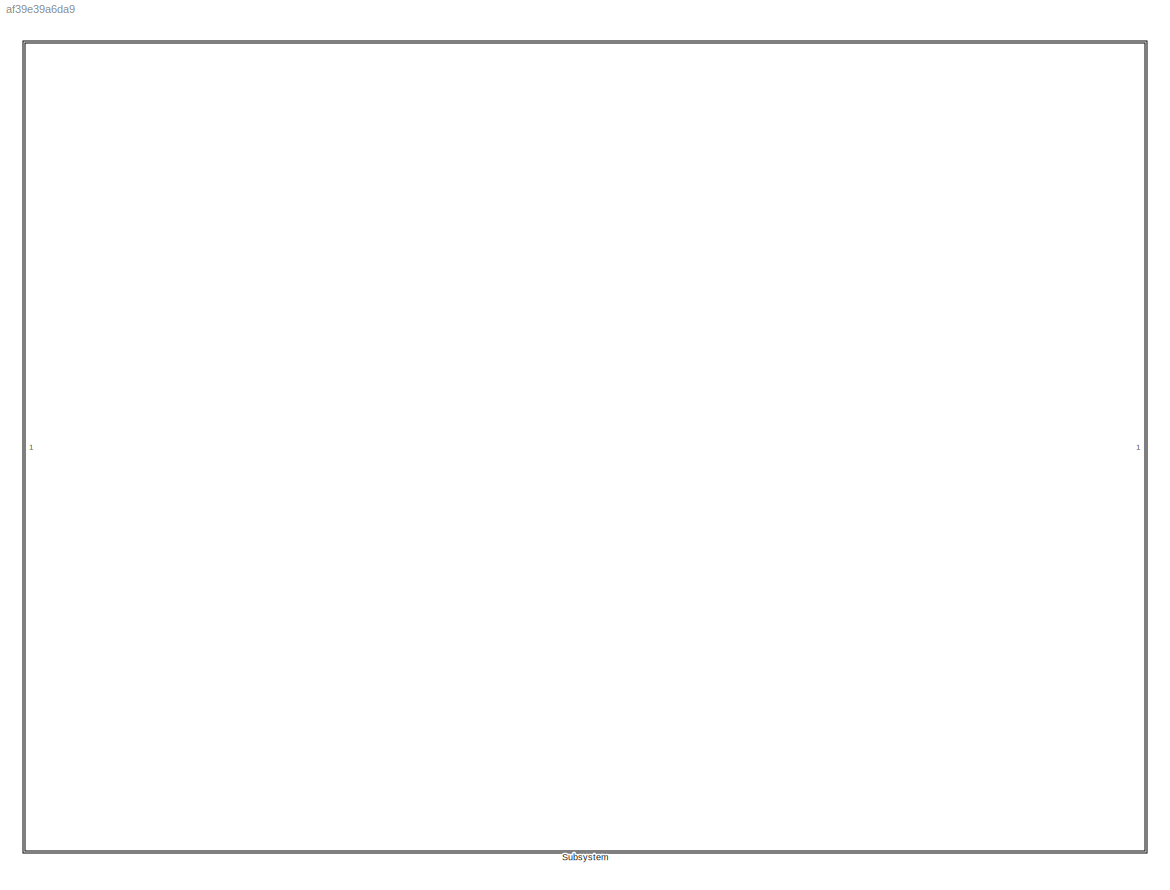
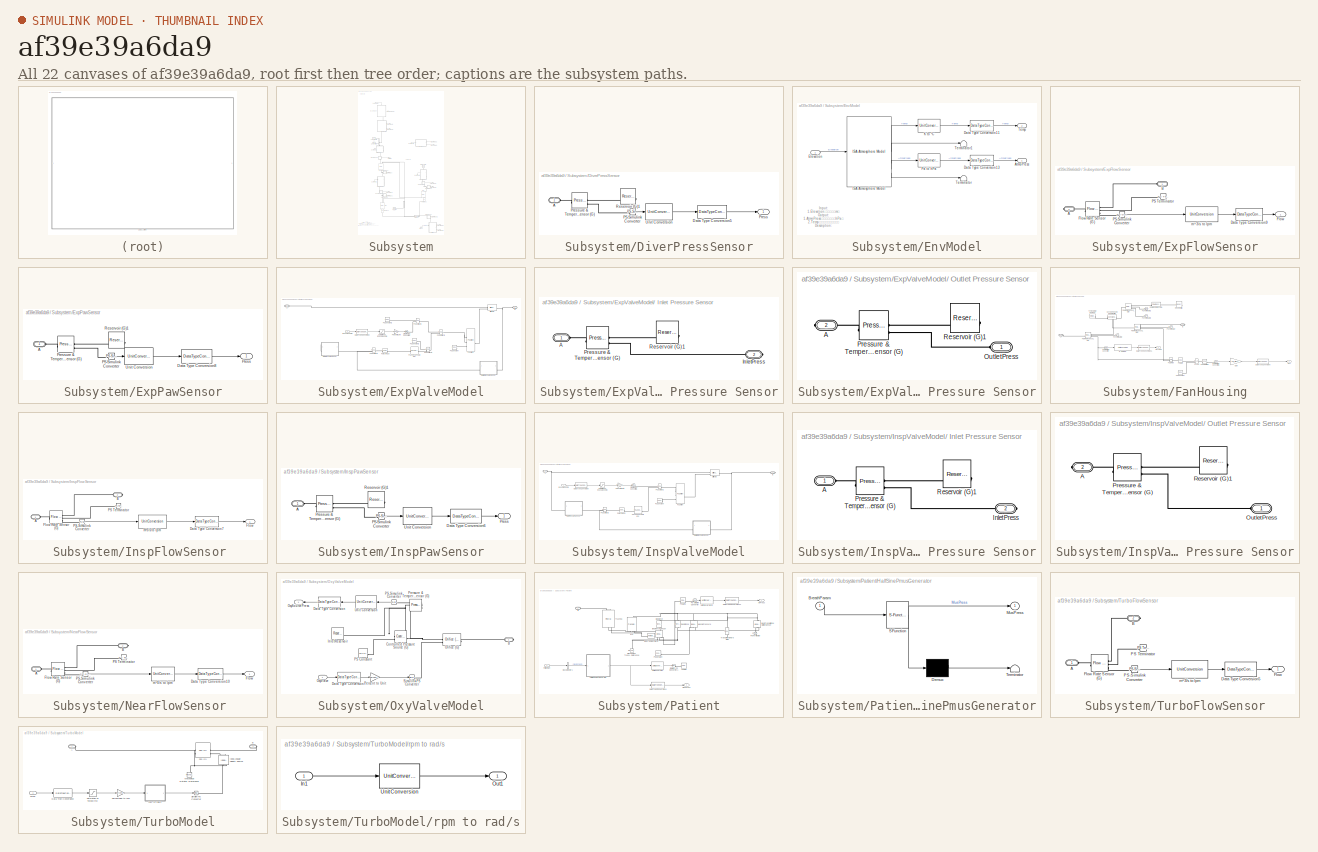
[diagram: thumbnail index - all 22 canvases of the model, root first then tree order]
MODEL slx_af39e39a6da9
KIND model
CONFIG AbsTol = auto
CONFIG EnableMultiTasking = on
CONFIG FixedStep = double(Ts)/1000
CONFIG MaxStep = auto
CONFIG MinStep = auto
CONFIG RelTol = 1e-3
CONFIG SampleTimeConstraint = Unconstrained
CONFIG SolverName = FixedStepDiscrete
CONFIG StartTime = 0.0
CONFIG StopTime = inf
WORKSPACE source: mxarray member
WORKSPACE Air_density = 1.29
WORKSPACE Body_Temperature = 37
WORKSPACE CtrlData_Max = 100
WORKSPACE CtrlData_Min = 0
WORKSPACE Detpress_to_Vavle: object (value not decoded)
WORKSPACE E_respriatory = 10
WORKSPACE ExpValve: object (value not decoded)
WORKSPACE FRC = 2
WORKSPACE Fan: object (value not decoded)
WORKSPACE FanHousing: object (value not decoded)
WORKSPACE Flow_Resistance_1: object (value not decoded)
WORKSPACE Flow_Resistance_2: object (value not decoded)
WORKSPACE Hard_Stop: Lower_bound (value not decoded)
WORKSPACE InspValve: object (value not decoded)
WORKSPACE L_to_m3 = 0.001
WORKSPACE Mask: object (value not decoded)
WORKSPACE OxyValve: object (value not decoded)
WORKSPACE OxygenSensor: object (value not decoded)
WORKSPACE Pa_to_cmH2O = 0.0101974428892
WORKSPACE Percent_to_Unit = 0.01
WORKSPACE Pipe_1: object (value not decoded)
WORKSPACE Pipe_2: object (value not decoded)
WORKSPACE Pipe_3: object (value not decoded)
WORKSPACE R_respiratory = 2
WORKSPACE Reservoir: Cross_area (value not decoded)
WORKSPACE Trachea: object (value not decoded)
WORKSPACE Volume_Max = 0.9
WORKSPACE cmH2O_to_Pa = 98.0638
WORKSPACE cmH2O_to_kPa = 0.0981
WORKSPACE lung: object (value not decoded)
WORKSPACE percentage_to_rpm = 600
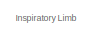
[diagram: Subsystem - part 1/4, top left region]
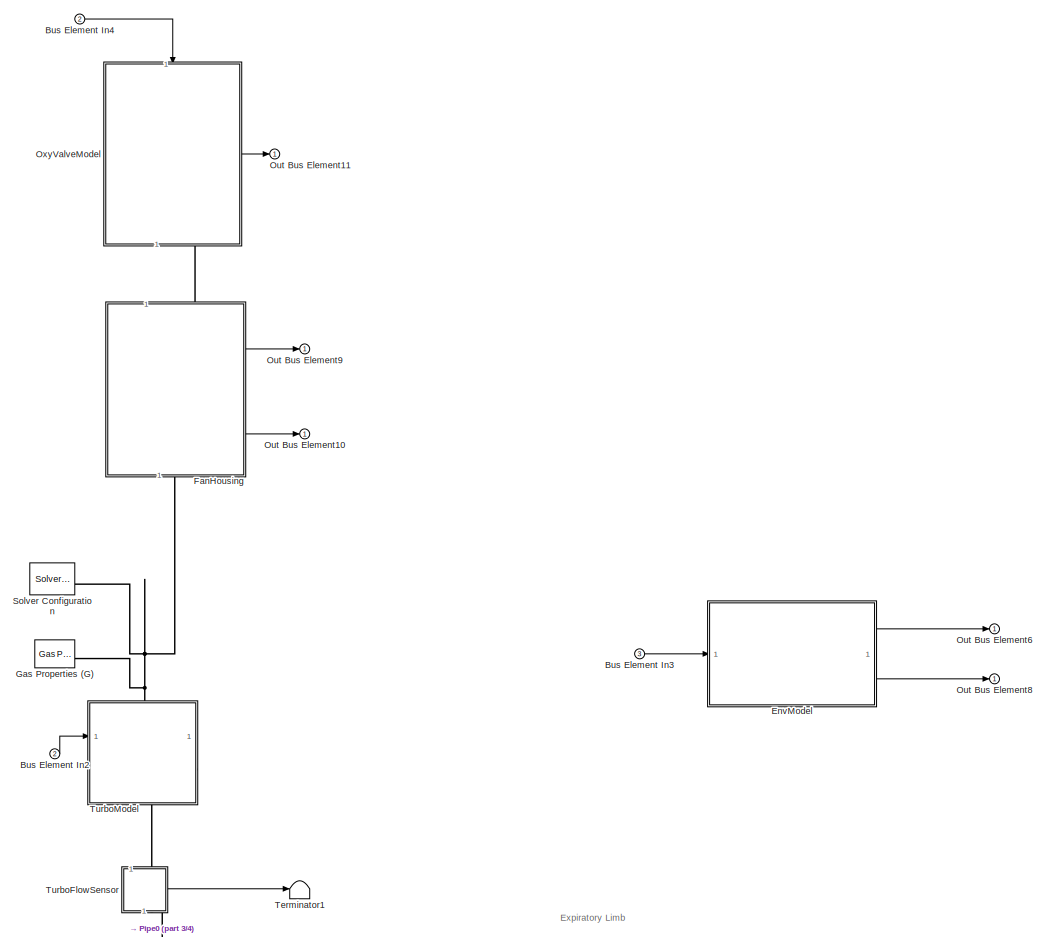
[diagram: Subsystem - part 2/4, full width, top band]
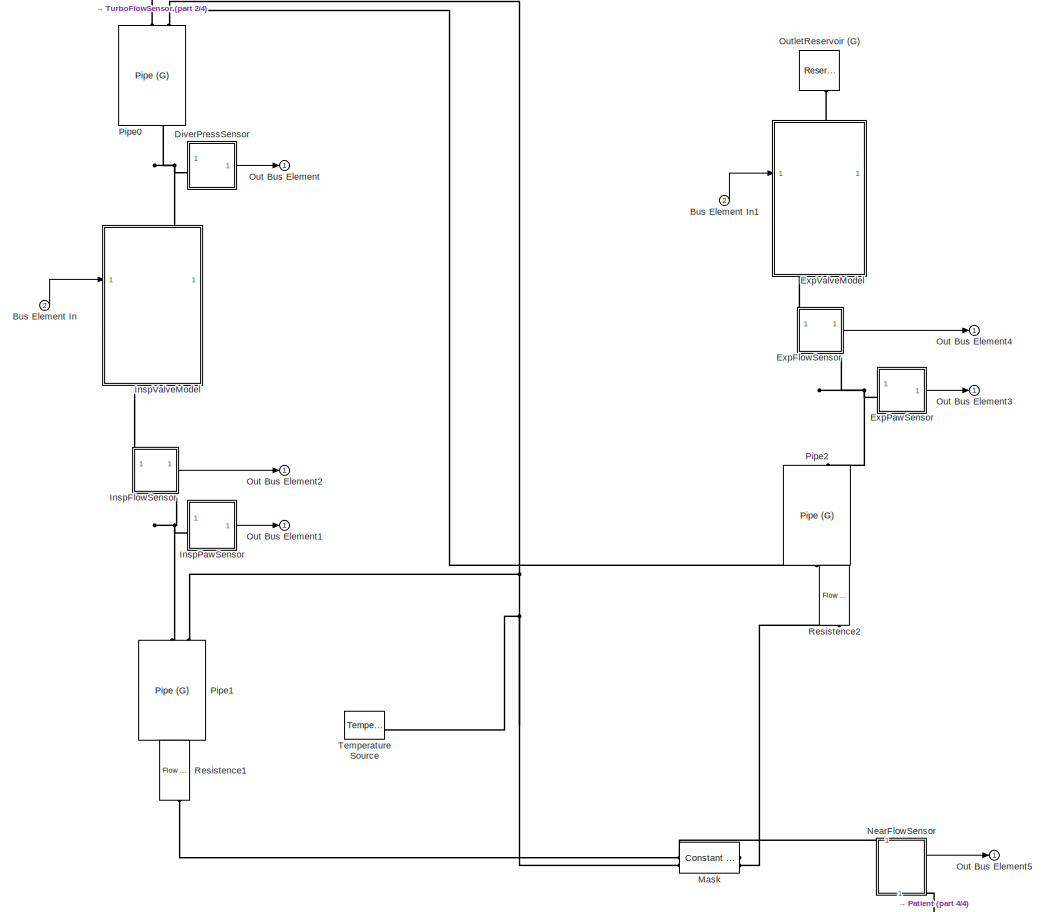
[diagram: Subsystem - part 3/4, full width, bottom band]
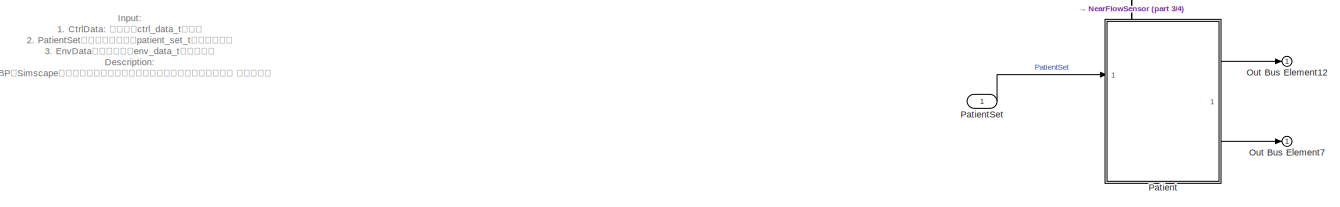
[diagram: Subsystem - part 4/4, full width, bottom band]
BLOCK [SubSystem] Subsystem
BLOCK [Inport] Subsystem/Bus Element In
  Port = 2
BLOCK [Inport] Subsystem/Bus Element In1
  Port = 2
BLOCK [Inport] Subsystem/Bus Element In2
  Port = 2
BLOCK [Inport] Subsystem/Bus Element In3
  Port = 3
BLOCK [Inport] Subsystem/Bus Element In4
  Port = 2
BLOCK [SubSystem] Subsystem/DiverPressSensor
  AttributesFormatString = %<Description>
  Description = 驱动压力传感器
BLOCK [PMIOPort] Subsystem/DiverPressSensor/A
  Side = Left
BLOCK [DataTypeConversion] Subsystem/DiverPressSensor/Data Type Conversion5
  OutDataTypeStr = single
  RndMeth = Floor
  SaturateOnIntegerOverflow = off
BLOCK [Reference] Subsystem/DiverPressSensor/PS-Simulink Converter  REF=nesl_utility/PS-Simulink
Converter
  SourceBlock = nesl_utility/PS-Simulink\nConverter
  SourceType = PS-Simulink\nConverter
BLOCK [Outport] Subsystem/DiverPressSensor/Press
  Unit = hPa
BLOCK [Reference] Subsystem/DiverPressSensor/Pressure & Temperature Sensor (G)  REF=fl_lib/Gas/Sensors/Pressure &
Temperature Sensor
(G)
  SourceBlock = fl_lib/Gas/Sensors/Pressure &\nTemperature Sensor\n(G)
  SourceType = Pressure &\nTemperature Sensor\n(G)
BLOCK [Reference] Subsystem/DiverPressSensor/Reservoir (G)1  REF=fl_lib/Gas/Elements/Reservoir (G)
  NameLocation = top
  SourceBlock = fl_lib/Gas/Elements/Reservoir (G)
  SourceType = Reservoir (G)
BLOCK [UnitConversion] Subsystem/DiverPressSensor/Unit Conversion
BLOCK [SubSystem] Subsystem/EnvModel
  AttributesFormatString = %<Description>
  Description = 环境模型
BLOCK [Outport] Subsystem/EnvModel/AtmoPress
  OutDataTypeStr = single
  Unit = hPa
BLOCK [DataTypeConversion] Subsystem/EnvModel/Data Type Conversion11
  OutDataTypeStr = single
  RndMeth = Floor
  SaturateOnIntegerOverflow = off
BLOCK [DataTypeConversion] Subsystem/EnvModel/Data Type Conversion13
  OutDataTypeStr = single
  RndMeth = Floor
  SaturateOnIntegerOverflow = off
BLOCK [Inport] Subsystem/EnvModel/Elevation
  OutDataTypeStr = int16
  Unit = m
BLOCK [Reference] Subsystem/EnvModel/ISA Atmosphere Model  REF=aerolibatmos2/ISA Atmosphere Model
  SourceBlock = aerolibatmos2/ISA Atmosphere Model
  SourceType = International Standard Atmosphere Model
BLOCK [UnitConversion] Subsystem/EnvModel/K to °C
  OutputType = Inherit: Inherit via back propagation
BLOCK [UnitConversion] Subsystem/EnvModel/Pa to hPa
  OutputType = Inherit: Inherit via back propagation
BLOCK [Outport] Subsystem/EnvModel/Temp
  OutDataTypeStr = single
  Port = 2
  Unit = °C
BLOCK [Terminator] Subsystem/EnvModel/Terminator
BLOCK [Terminator] Subsystem/EnvModel/Terminator1
BLOCK [SubSystem] Subsystem/ExpFlowSensor
  AttributesFormatString = %<Description>
  Description = 呼气流量传感器
  NameLocation = left
  PortSchema = {"entries":[{"content":{"sides":[{"content":{},"type":"ConnectorPlacement.EquallySpacedRectSide","uuid":"cd0dad8e-6d52-4c29-8cf6-3415105d5cc2"},{"content":{"connectorIds":["Out1"],"side":"RIGHT"},"type":"ConnectorPlacement.EquallySpacedRectSide","uuid":"87c9a66d-f959-45b9-804b-fad11e97da0c"},{"content":{"connectorIds":["LConn1"],"side":"TOP"},"type":"ConnectorPlacement.EquallySpacedRectSide","uuid...<+378ch>
BLOCK [PMIOPort] Subsystem/ExpFlowSensor/A
  Port = 2
  Side = Right
BLOCK [PMIOPort] Subsystem/ExpFlowSensor/B
  Side = Left
BLOCK [DataTypeConversion] Subsystem/ExpFlowSensor/Data Type Conversion9
  OutDataTypeStr = single
  RndMeth = Floor
  SaturateOnIntegerOverflow = off
BLOCK [Outport] Subsystem/ExpFlowSensor/Flow
  Unit = lpm
BLOCK [Reference] Subsystem/ExpFlowSensor/Flow Rate Sensor (G)  REF=fl_lib/Gas/Sensors/Flow Rate Sensor (G)
  SourceBlock = fl_lib/Gas/Sensors/Flow Rate Sensor (G)
  SourceType = Flow Rate Sensor (G)
BLOCK [Reference] Subsystem/ExpFlowSensor/PS Terminator  REF=fl_lib/Physical Signals/Sinks/PS Terminator
  SourceBlock = fl_lib/Physical Signals/Sinks/PS Terminator
  SourceType = PS Terminator
BLOCK [Reference] Subsystem/ExpFlowSensor/PS-Simulink Converter  REF=nesl_utility/PS-Simulink
Converter
  SourceBlock = nesl_utility/PS-Simulink\nConverter
  SourceType = PS-Simulink\nConverter
BLOCK [UnitConversion] Subsystem/ExpFlowSensor/m^3//s to lpm
BLOCK [SubSystem] Subsystem/ExpPawSensor
  AttributesFormatString = %<Description>
  Description = 呼气压力传感器
BLOCK [PMIOPort] Subsystem/ExpPawSensor/A
  Side = Left
BLOCK [DataTypeConversion] Subsystem/ExpPawSensor/Data Type Conversion8
  OutDataTypeStr = single
  RndMeth = Floor
  SaturateOnIntegerOverflow = off
BLOCK [Reference] Subsystem/ExpPawSensor/PS-Simulink Converter  REF=nesl_utility/PS-Simulink
Converter
  SourceBlock = nesl_utility/PS-Simulink\nConverter
  SourceType = PS-Simulink\nConverter
BLOCK [Outport] Subsystem/ExpPawSensor/Press
  Unit = hPa
BLOCK [Reference] Subsystem/ExpPawSensor/Pressure & Temperature Sensor (G)  REF=fl_lib/Gas/Sensors/Pressure &
Temperature Sensor
(G)
  SourceBlock = fl_lib/Gas/Sensors/Pressure &\nTemperature Sensor\n(G)
  SourceType = Pressure &\nTemperature Sensor\n(G)
BLOCK [Reference] Subsystem/ExpPawSensor/Reservoir (G)1  REF=fl_lib/Gas/Elements/Reservoir (G)
  NameLocation = top
  SourceBlock = fl_lib/Gas/Elements/Reservoir (G)
  SourceType = Reservoir (G)
BLOCK [UnitConversion] Subsystem/ExpPawSensor/Unit Conversion
BLOCK [SubSystem] Subsystem/ExpValveModel
  AttributesFormatString = %<Description>
  Description = 呼气阀模型
  NameLocation = right
  PortSchema = {"entries":[{"content":{"sides":[{"content":{"connectorIds":["In1"]},"type":"ConnectorPlacement.EquallySpacedRectSide","uuid":"c1491169-4dad-48f4-8472-367eebf90c5f"},{"content":{"side":"RIGHT"},"type":"ConnectorPlacement.EquallySpacedRectSide","uuid":"0545f3b4-3593-4e73-91f2-3a40a520eda3"},{"content":{"connectorIds":["LConn1"],"side":"TOP"},"type":"ConnectorPlacement.EquallySpacedRectSide","uuid":...<+376ch>  <repeated x3 — deduplicated; at blocks: ExpValveModel, InspValveModel, TurboModel>
BLOCK [SubSystem] Subsystem/ExpValveModel/ Inlet Pressure Sensor
BLOCK [PMIOPort] Subsystem/ExpValveModel/ Inlet Pressure Sensor/A
  Side = Left
BLOCK [PMIOPort] Subsystem/ExpValveModel/ Inlet Pressure Sensor/InletPress
  Port = 2
  Side = Right
BLOCK [Reference] Subsystem/ExpValveModel/ Inlet Pressure Sensor/Pressure & Temperature Sensor (G)  REF=fl_lib/Gas/Sensors/Pressure &
Temperature Sensor
(G)
  SourceBlock = fl_lib/Gas/Sensors/Pressure &\nTemperature Sensor\n(G)
  SourceType = Pressure &\nTemperature Sensor\n(G)
BLOCK [Reference] Subsystem/ExpValveModel/ Inlet Pressure Sensor/Reservoir (G)1  REF=fl_lib/Gas/Elements/Reservoir (G)
  NameLocation = top
  SourceBlock = fl_lib/Gas/Elements/Reservoir (G)
  SourceType = Reservoir (G)
BLOCK [SubSystem] Subsystem/ExpValveModel/ Outlet Pressure Sensor
BLOCK [PMIOPort] Subsystem/ExpValveModel/ Outlet Pressure Sensor/A
  Port = 2
  Side = Right
BLOCK [PMIOPort] Subsystem/ExpValveModel/ Outlet Pressure Sensor/OutletPress
  Side = Left
BLOCK [Reference] Subsystem/ExpValveModel/ Outlet Pressure Sensor/Pressure & Temperature Sensor (G)  REF=fl_lib/Gas/Sensors/Pressure &
Temperature Sensor
(G)
  SourceBlock = fl_lib/Gas/Sensors/Pressure &\nTemperature Sensor\n(G)
  SourceType = Pressure &\nTemperature Sensor\n(G)
BLOCK [Reference] Subsystem/ExpValveModel/ Outlet Pressure Sensor/Reservoir (G)1  REF=fl_lib/Gas/Elements/Reservoir (G)
  NameLocation = top
  SourceBlock = fl_lib/Gas/Elements/Reservoir (G)
  SourceType = Reservoir (G)
BLOCK [PMIOPort] Subsystem/ExpValveModel/A
  Port = 2
  Side = Right
BLOCK [PMIOPort] Subsystem/ExpValveModel/B
  NameLocation = top
  Side = Left
BLOCK [DataTypeConversion] Subsystem/ExpValveModel/Data Type Conversion
  OutDataTypeStr = double
  RndMeth = Floor
  SaturateOnIntegerOverflow = off
BLOCK [Inport] Subsystem/ExpValveModel/ExpValveCmd
BLOCK [Reference] Subsystem/ExpValveModel/Orifice (G)  REF=SimscapeFluids_lib/Gas/Valves & Orifices/Orifice (G)
  SourceBlock = SimscapeFluids_lib/Gas/Valves & Orifices/Orifice (G)
  SourceType = Orifice (G)
BLOCK [Reference] Subsystem/ExpValveModel/PS Constant  REF=fl_lib/Physical Signals/Sources/PS Constant
  SourceBlock = fl_lib/Physical Signals/Sources/PS Constant
  SourceType = PS Constant
BLOCK [Reference] Subsystem/ExpValveModel/PS Constant1  REF=fl_lib/Physical Signals/Sources/PS Constant
  SourceBlock = fl_lib/Physical Signals/Sources/PS Constant
  SourceType = PS Constant
BLOCK [Reference] Subsystem/ExpValveModel/PS Constant2  REF=fl_lib/Physical Signals/Sources/PS Constant
  SourceBlock = fl_lib/Physical Signals/Sources/PS Constant
  SourceType = PS Constant
BLOCK [Reference] Subsystem/ExpValveModel/PS Lookup Table (1D)  REF=fl_lib/Physical Signals/Lookup Tables/PS Lookup Table (1D)
  SourceBlock = fl_lib/Physical Signals/Lookup Tables/PS Lookup Table (1D)
  SourceType = PS Lookup Table (1D)
BLOCK [Reference] Subsystem/ExpValveModel/PS Subtract1  REF=fl_lib/Physical Signals/Functions/PS Subtract
  SourceBlock = fl_lib/Physical Signals/Functions/PS Subtract
  SourceType = PS Subtract
BLOCK [Reference] Subsystem/ExpValveModel/PS Subtract2  REF=fl_lib/Physical Signals/Functions/PS Subtract
  SourceBlock = fl_lib/Physical Signals/Functions/PS Subtract
  SourceType = PS Subtract
BLOCK [Reference] Subsystem/ExpValveModel/PS Subtract3  REF=fl_lib/Physical Signals/Functions/PS Subtract
  SourceBlock = fl_lib/Physical Signals/Functions/PS Subtract
  SourceType = PS Subtract
BLOCK [Reference] Subsystem/ExpValveModel/PS Subtract4  REF=fl_lib/Physical Signals/Functions/PS Subtract
  SourceBlock = fl_lib/Physical Signals/Functions/PS Subtract
  SourceType = PS Subtract
BLOCK [Reference] Subsystem/ExpValveModel/PS Switch  REF=fl_lib/Physical Signals/Nonlinear Operators/PS Switch
  SourceBlock = fl_lib/Physical Signals/Nonlinear Operators/PS Switch
  SourceType = PS Switch
BLOCK [Reference] Subsystem/ExpValveModel/Pa to cmH2O  REF=fl_lib/Physical Signals/Functions/PS Gain
  SourceBlock = fl_lib/Physical Signals/Functions/PS Gain
  SourceType = PS Gain
BLOCK [Gain] Subsystem/ExpValveModel/Percent to Unit
  Gain = Percent_to_Unit
BLOCK [Saturate] Subsystem/ExpValveModel/Saturation of ExpValveCmd
  LowerLimit = CtrlData_Min
  UpperLimit = CtrlData_Max
BLOCK [Reference] Subsystem/ExpValveModel/Simulink-PS Converter1  REF=nesl_utility/Simulink-PS
Converter
  SourceBlock = nesl_utility/Simulink-PS\nConverter
  SourceType = Simulink-PS\nConverter
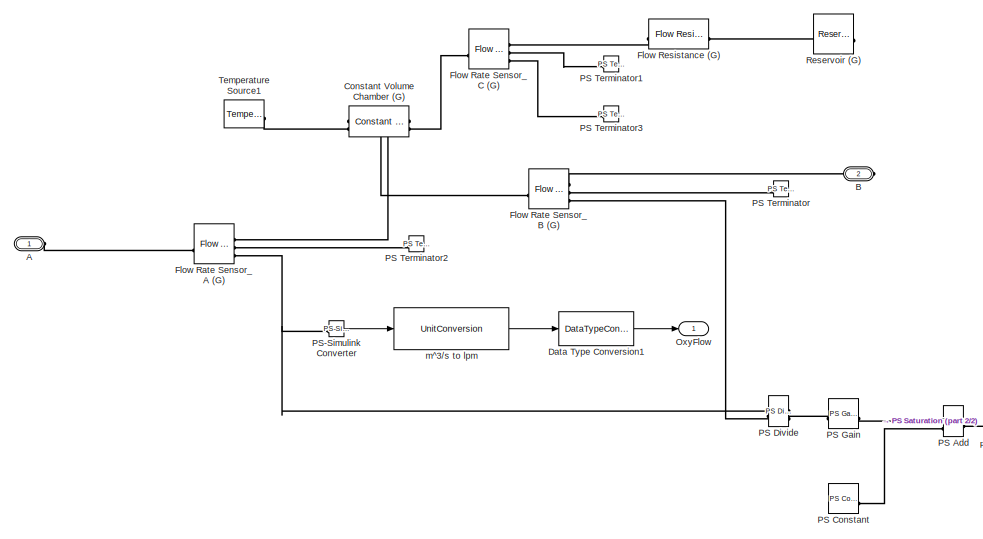
[diagram: Subsystem/FanHousing - part 1/2, left side, full height]
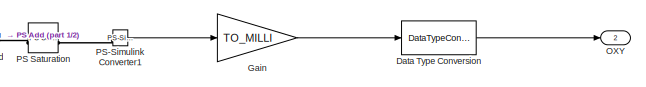
[diagram: Subsystem/FanHousing - part 2/2, bottom right region]
BLOCK [SubSystem] Subsystem/FanHousing
  NameLocation = left
  PortSchema = {"entries":[{"content":{"sides":[{"content":{"connectorIds":["LConn1"]},"type":"ConnectorPlacement.EquallySpacedRectSide","uuid":"15cafa55-60cd-4d3b-b977-d1b85a2ca433"},{"content":{"connectorIds":["RConn1"],"side":"RIGHT"},"type":"ConnectorPlacement.EquallySpacedRectSide","uuid":"8d18da00-01d7-4e91-b6fd-cbc9715a4a90"},{"content":{"side":"TOP"},"type":"ConnectorPlacement.EquallySpacedRectSide","uui...<+384ch>
BLOCK [PMIOPort] Subsystem/FanHousing/A
  Side = Left
BLOCK [PMIOPort] Subsystem/FanHousing/B
  Port = 2
  Side = Right
BLOCK [Reference] Subsystem/FanHousing/Constant Volume Chamber (G)  REF=fl_lib/Gas/Elements/Constant Volume
Chamber (G)
  NameLocation = top
  SourceBlock = fl_lib/Gas/Elements/Constant Volume\nChamber (G)
  SourceType = Constant Volume\nChamber (G)
BLOCK [DataTypeConversion] Subsystem/FanHousing/Data Type Conversion
  OutDataTypeStr = single
  RndMeth = Floor
  SaturateOnIntegerOverflow = off
BLOCK [DataTypeConversion] Subsystem/FanHousing/Data Type Conversion1
  OutDataTypeStr = single
  RndMeth = Floor
  SaturateOnIntegerOverflow = off
BLOCK [Reference] Subsystem/FanHousing/Flow Rate Sensor_A (G)  REF=fl_lib/Gas/Sensors/Flow Rate Sensor (G)
  SourceBlock = fl_lib/Gas/Sensors/Flow Rate Sensor (G)
  SourceType = Flow Rate Sensor (G)
BLOCK [Reference] Subsystem/FanHousing/Flow Rate Sensor_B (G)  REF=fl_lib/Gas/Sensors/Flow Rate Sensor (G)
  SourceBlock = fl_lib/Gas/Sensors/Flow Rate Sensor (G)
  SourceType = Flow Rate Sensor (G)
BLOCK [Reference] Subsystem/FanHousing/Flow Rate Sensor_C (G)  REF=fl_lib/Gas/Sensors/Flow Rate Sensor (G)
  SourceBlock = fl_lib/Gas/Sensors/Flow Rate Sensor (G)
  SourceType = Flow Rate Sensor (G)
BLOCK [Reference] Subsystem/FanHousing/Flow Resistance (G)  REF=fl_lib/Gas/Elements/Flow Resistance (G)
  SourceBlock = fl_lib/Gas/Elements/Flow Resistance (G)
  SourceType = Flow Resistance (G)
BLOCK [Gain] Subsystem/FanHousing/Gain
  Gain = TO_MILLI
BLOCK [Outport] Subsystem/FanHousing/OXY
  Port = 2
  Unit = m
BLOCK [Outport] Subsystem/FanHousing/OxyFlow
  Unit = lpm
BLOCK [Reference] Subsystem/FanHousing/PS Add  REF=fl_lib/Physical Signals/Functions/PS Add
  SourceBlock = fl_lib/Physical Signals/Functions/PS Add
  SourceType = PS Add
BLOCK [Reference] Subsystem/FanHousing/PS Constant  REF=fl_lib/Physical Signals/Sources/PS Constant
  SourceBlock = fl_lib/Physical Signals/Sources/PS Constant
  SourceType = PS Constant
BLOCK [Reference] Subsystem/FanHousing/PS Divide  REF=fl_lib/Physical Signals/Functions/PS Divide
  SourceBlock = fl_lib/Physical Signals/Functions/PS Divide
  SourceType = PS Divide
BLOCK [Reference] Subsystem/FanHousing/PS Gain  REF=fl_lib/Physical Signals/Functions/PS Gain
  SourceBlock = fl_lib/Physical Signals/Functions/PS Gain
  SourceType = PS Gain
BLOCK [Reference] Subsystem/FanHousing/PS Saturation  REF=fl_lib/Physical Signals/Nonlinear Operators/PS Saturation
  SourceBlock = fl_lib/Physical Signals/Nonlinear Operators/PS Saturation
  SourceType = PS Saturation
BLOCK [Reference] Subsystem/FanHousing/PS Terminator  REF=fl_lib/Physical Signals/Sinks/PS Terminator
  SourceBlock = fl_lib/Physical Signals/Sinks/PS Terminator
  SourceType = PS Terminator
BLOCK [Reference] Subsystem/FanHousing/PS Terminator1  REF=fl_lib/Physical Signals/Sinks/PS Terminator
  SourceBlock = fl_lib/Physical Signals/Sinks/PS Terminator
  SourceType = PS Terminator
BLOCK [Reference] Subsystem/FanHousing/PS Terminator2  REF=fl_lib/Physical Signals/Sinks/PS Terminator
  SourceBlock = fl_lib/Physical Signals/Sinks/PS Terminator
  SourceType = PS Terminator
BLOCK [Reference] Subsystem/FanHousing/PS Terminator3  REF=fl_lib/Physical Signals/Sinks/PS Terminator
  SourceBlock = fl_lib/Physical Signals/Sinks/PS Terminator
  SourceType = PS Terminator
BLOCK [Reference] Subsystem/FanHousing/PS-Simulink Converter  REF=nesl_utility/PS-Simulink
Converter
  SourceBlock = nesl_utility/PS-Simulink\nConverter
  SourceType = PS-Simulink\nConverter
BLOCK [Reference] Subsystem/FanHousing/PS-Simulink Converter1  REF=nesl_utility/PS-Simulink
Converter
  SourceBlock = nesl_utility/PS-Simulink\nConverter
  SourceType = PS-Simulink\nConverter
BLOCK [Reference] Subsystem/FanHousing/Reservoir (G)  REF=fl_lib/Gas/Elements/Reservoir (G)
  NameLocation = top
  SourceBlock = fl_lib/Gas/Elements/Reservoir (G)
  SourceType = Reservoir (G)
BLOCK [Reference] Subsystem/FanHousing/Temperature Source1  REF=fl_lib/Thermal/Thermal Sources/Temperature Source
  SourceBlock = fl_lib/Thermal/Thermal Sources/Temperature Source
  SourceType = Temperature Source
BLOCK [UnitConversion] Subsystem/FanHousing/m^3//s to lpm
BLOCK [Reference] Subsystem/Gas Properties (G)  REF=fl_lib/Gas/Utilities/Gas Properties (G)
  SourceBlock = fl_lib/Gas/Utilities/Gas Properties (G)
  SourceType = Gas Properties (G)
BLOCK [SubSystem] Subsystem/InspFlowSensor 
  AttributesFormatString = %<Description>
  Description = 吸气流量传感器
  NameLocation = left
  PortSchema = {"entries":[{"content":{"sides":[{"content":{},"type":"ConnectorPlacement.EquallySpacedRectSide","uuid":"cd0dad8e-6d52-4c29-8cf6-3415105d5cc2"},{"content":{"connectorIds":["Out1"],"side":"RIGHT"},"type":"ConnectorPlacement.EquallySpacedRectSide","uuid":"87c9a66d-f959-45b9-804b-fad11e97da0c"},{"content":{"connectorIds":["LConn1"],"side":"TOP"},"type":"ConnectorPlacement.EquallySpacedRectSide","uuid...<+378ch>
BLOCK [PMIOPort] Subsystem/InspFlowSensor /A
  Side = Left
BLOCK [PMIOPort] Subsystem/InspFlowSensor /B
  Port = 2
  Side = Right
BLOCK [DataTypeConversion] Subsystem/InspFlowSensor /Data Type Conversion7
  OutDataTypeStr = single
  RndMeth = Floor
  SaturateOnIntegerOverflow = off
BLOCK [Outport] Subsystem/InspFlowSensor /Flow
  Unit = lpm
BLOCK [Reference] Subsystem/InspFlowSensor /Flow Rate Sensor (G)  REF=fl_lib/Gas/Sensors/Flow Rate Sensor (G)
  SourceBlock = fl_lib/Gas/Sensors/Flow Rate Sensor (G)
  SourceType = Flow Rate Sensor (G)
BLOCK [Reference] Subsystem/InspFlowSensor /PS Terminator  REF=fl_lib/Physical Signals/Sinks/PS Terminator
  SourceBlock = fl_lib/Physical Signals/Sinks/PS Terminator
  SourceType = PS Terminator
BLOCK [Reference] Subsystem/InspFlowSensor /PS-Simulink Converter  REF=nesl_utility/PS-Simulink
Converter
  SourceBlock = nesl_utility/PS-Simulink\nConverter
  SourceType = PS-Simulink\nConverter
BLOCK [UnitConversion] Subsystem/InspFlowSensor /m^3//s to lpm
BLOCK [SubSystem] Subsystem/InspPawSensor
  AttributesFormatString = %<Description>
  Description = 吸气压力传感器
BLOCK [PMIOPort] Subsystem/InspPawSensor/A
  Side = Left
BLOCK [DataTypeConversion] Subsystem/InspPawSensor/Data Type Conversion6
  OutDataTypeStr = single
  RndMeth = Floor
  SaturateOnIntegerOverflow = off
BLOCK [Reference] Subsystem/InspPawSensor/PS-Simulink Converter  REF=nesl_utility/PS-Simulink
Converter
  SourceBlock = nesl_utility/PS-Simulink\nConverter
  SourceType = PS-Simulink\nConverter
BLOCK [Outport] Subsystem/InspPawSensor/Press
  Unit = hPa
BLOCK [Reference] Subsystem/InspPawSensor/Pressure & Temperature Sensor (G)  REF=fl_lib/Gas/Sensors/Pressure &
Temperature Sensor
(G)
  SourceBlock = fl_lib/Gas/Sensors/Pressure &\nTemperature Sensor\n(G)
  SourceType = Pressure &\nTemperature Sensor\n(G)
BLOCK [Reference] Subsystem/InspPawSensor/Reservoir (G)1  REF=fl_lib/Gas/Elements/Reservoir (G)
  NameLocation = top
  SourceBlock = fl_lib/Gas/Elements/Reservoir (G)
  SourceType = Reservoir (G)
BLOCK [UnitConversion] Subsystem/InspPawSensor/Unit Conversion
BLOCK [SubSystem] Subsystem/InspValveModel
  AttributesFormatString = %<Description>
  Description = 吸气阀模型
  NameLocation = right
BLOCK [SubSystem] Subsystem/InspValveModel/ Inlet Pressure Sensor
BLOCK [PMIOPort] Subsystem/InspValveModel/ Inlet Pressure Sensor/A
  Side = Left
BLOCK [PMIOPort] Subsystem/InspValveModel/ Inlet Pressure Sensor/InletPress
  Port = 2
  Side = Right
BLOCK [Reference] Subsystem/InspValveModel/ Inlet Pressure Sensor/Pressure & Temperature Sensor (G)  REF=fl_lib/Gas/Sensors/Pressure &
Temperature Sensor
(G)
  SourceBlock = fl_lib/Gas/Sensors/Pressure &\nTemperature Sensor\n(G)
  SourceType = Pressure &\nTemperature Sensor\n(G)
BLOCK [Reference] Subsystem/InspValveModel/ Inlet Pressure Sensor/Reservoir (G)1  REF=fl_lib/Gas/Elements/Reservoir (G)
  NameLocation = top
  SourceBlock = fl_lib/Gas/Elements/Reservoir (G)
  SourceType = Reservoir (G)
BLOCK [SubSystem] Subsystem/InspValveModel/ Outlet Pressure Sensor
BLOCK [PMIOPort] Subsystem/InspValveModel/ Outlet Pressure Sensor/A
  Port = 2
  Side = Right
BLOCK [PMIOPort] Subsystem/InspValveModel/ Outlet Pressure Sensor/OutletPress
  Side = Left
BLOCK [Reference] Subsystem/InspValveModel/ Outlet Pressure Sensor/Pressure & Temperature Sensor (G)  REF=fl_lib/Gas/Sensors/Pressure &
Temperature Sensor
(G)
  SourceBlock = fl_lib/Gas/Sensors/Pressure &\nTemperature Sensor\n(G)
  SourceType = Pressure &\nTemperature Sensor\n(G)
BLOCK [Reference] Subsystem/InspValveModel/ Outlet Pressure Sensor/Reservoir (G)1  REF=fl_lib/Gas/Elements/Reservoir (G)
  NameLocation = top
  SourceBlock = fl_lib/Gas/Elements/Reservoir (G)
  SourceType = Reservoir (G)
BLOCK [PMIOPort] Subsystem/InspValveModel/A
  Side = Left
BLOCK [PMIOPort] Subsystem/InspValveModel/B
  Port = 2
  Side = Right
BLOCK [DataTypeConversion] Subsystem/InspValveModel/Data Type Conversion
  OutDataTypeStr = double
  RndMeth = Floor
  SaturateOnIntegerOverflow = off
BLOCK [Inport] Subsystem/InspValveModel/InspValveCmd
BLOCK [Reference] Subsystem/InspValveModel/Orifice (G)  REF=SimscapeFluids_lib/Gas/Valves & Orifices/Orifice (G)
  SourceBlock = SimscapeFluids_lib/Gas/Valves & Orifices/Orifice (G)
  SourceType = Orifice (G)
BLOCK [Reference] Subsystem/InspValveModel/PS Constant  REF=fl_lib/Physical Signals/Sources/PS Constant
  SourceBlock = fl_lib/Physical Signals/Sources/PS Constant
  SourceType = PS Constant
BLOCK [Reference] Subsystem/InspValveModel/PS Lookup Table (1D)  REF=fl_lib/Physical Signals/Lookup Tables/PS Lookup Table (1D)
  SourceBlock = fl_lib/Physical Signals/Lookup Tables/PS Lookup Table (1D)
  SourceType = PS Lookup Table (1D)
BLOCK [Reference] Subsystem/InspValveModel/PS Subtract1  REF=fl_lib/Physical Signals/Functions/PS Subtract
  SourceBlock = fl_lib/Physical Signals/Functions/PS Subtract
  SourceType = PS Subtract
BLOCK [Reference] Subsystem/InspValveModel/PS Subtract2  REF=fl_lib/Physical Signals/Functions/PS Subtract
  SourceBlock = fl_lib/Physical Signals/Functions/PS Subtract
  SourceType = PS Subtract
BLOCK [Reference] Subsystem/InspValveModel/PS Switch  REF=fl_lib/Physical Signals/Nonlinear Operators/PS Switch
  SourceBlock = fl_lib/Physical Signals/Nonlinear Operators/PS Switch
  SourceType = PS Switch
BLOCK [Reference] Subsystem/InspValveModel/Pa to cmH2O  REF=fl_lib/Physical Signals/Functions/PS Gain
  SourceBlock = fl_lib/Physical Signals/Functions/PS Gain
  SourceType = PS Gain
BLOCK [Gain] Subsystem/InspValveModel/Percent to Unit
  Gain = Percent_to_Unit
BLOCK [Saturate] Subsystem/InspValveModel/Saturation of InspValveCmd
  LowerLimit = CtrlData_Min
  UpperLimit = CtrlData_Max
BLOCK [Reference] Subsystem/InspValveModel/Simulink-PS Converter1  REF=nesl_utility/Simulink-PS
Converter
  SourceBlock = nesl_utility/Simulink-PS\nConverter
  SourceType = Simulink-PS\nConverter
BLOCK [Reference] Subsystem/Mask  REF=fl_lib/Gas/Elements/Constant Volume
Chamber (G)
  SourceBlock = fl_lib/Gas/Elements/Constant Volume\nChamber (G)
  SourceType = Constant Volume\nChamber (G)
BLOCK [SubSystem] Subsystem/NearFlowSensor 
  AttributesFormatString = %<Description>
  Description = 近端流量传感器
  PortSchema = {"entries":[{"content":{"sides":[{"content":{},"type":"ConnectorPlacement.EquallySpacedRectSide","uuid":"cd0dad8e-6d52-4c29-8cf6-3415105d5cc2"},{"content":{"side":"RIGHT"},"type":"ConnectorPlacement.EquallySpacedRectSide","uuid":"87c9a66d-f959-45b9-804b-fad11e97da0c"},{"content":{"connectorIds":["LConn1"],"side":"TOP"},"type":"ConnectorPlacement.EquallySpacedRectSide","uuid":"0f1be0ab-1da3-44f6-9d...<+361ch>
BLOCK [PMIOPort] Subsystem/NearFlowSensor /A
  Side = Left
BLOCK [PMIOPort] Subsystem/NearFlowSensor /B
  Port = 2
  Side = Right
BLOCK [DataTypeConversion] Subsystem/NearFlowSensor /Data Type Conversion10
  OutDataTypeStr = single
  RndMeth = Floor
  SaturateOnIntegerOverflow = off
BLOCK [Outport] Subsystem/NearFlowSensor /Flow
  Unit = lpm
BLOCK [Reference] Subsystem/NearFlowSensor /Flow Rate Sensor (G)  REF=fl_lib/Gas/Sensors/Flow Rate Sensor (G)
  SourceBlock = fl_lib/Gas/Sensors/Flow Rate Sensor (G)
  SourceType = Flow Rate Sensor (G)
BLOCK [Reference] Subsystem/NearFlowSensor /PS Terminator  REF=fl_lib/Physical Signals/Sinks/PS Terminator
  SourceBlock = fl_lib/Physical Signals/Sinks/PS Terminator
  SourceType = PS Terminator
BLOCK [Reference] Subsystem/NearFlowSensor /PS-Simulink Converter  REF=nesl_utility/PS-Simulink
Converter
  SourceBlock = nesl_utility/PS-Simulink\nConverter
  SourceType = PS-Simulink\nConverter
BLOCK [UnitConversion] Subsystem/NearFlowSensor /m^3//s to lpm
BLOCK [Outport] Subsystem/Out Bus Element
BLOCK [Outport] Subsystem/Out Bus Element1
BLOCK [Outport] Subsystem/Out Bus Element10
BLOCK [Outport] Subsystem/Out Bus Element11
BLOCK [Outport] Subsystem/Out Bus Element12
BLOCK [Outport] Subsystem/Out Bus Element2
BLOCK [Outport] Subsystem/Out Bus Element3
BLOCK [Outport] Subsystem/Out Bus Element4
BLOCK [Outport] Subsystem/Out Bus Element5
BLOCK [Outport] Subsystem/Out Bus Element6
BLOCK [Outport] Subsystem/Out Bus Element7
BLOCK [Outport] Subsystem/Out Bus Element8
BLOCK [Outport] Subsystem/Out Bus Element9
BLOCK [Reference] Subsystem/OutletReservoir (G)  REF=fl_lib/Gas/Elements/Reservoir (G)
  NameLocation = left
  SourceBlock = fl_lib/Gas/Elements/Reservoir (G)
  SourceType = Reservoir (G)
BLOCK [SubSystem] Subsystem/OxyValveModel
  NameLocation = left
  PortSchema = {"entries":[{"content":{"sides":[{"content":{"connectorIds":["In1"]},"type":"ConnectorPlacement.EquallySpacedRectSide","uuid":"9d644a1c-3214-4c76-a751-f4dcf82b9898"},{"content":{"connectorIds":["RConn1"],"side":"RIGHT"},"type":"ConnectorPlacement.EquallySpacedRectSide","uuid":"77422f73-2317-45e1-92a7-aabc8fce9737"},{"content":{"side":"TOP"},"type":"ConnectorPlacement.EquallySpacedRectSide","uuid":...<+374ch>
BLOCK [PMIOPort] Subsystem/OxyValveModel/B
  Side = Right
BLOCK [Reference] Subsystem/OxyValveModel/Controlled Pressure Source (G)  REF=fl_lib/Gas/Sources/Controlled Pressure
Source (G)
  SourceBlock = fl_lib/Gas/Sources/Controlled Pressure\nSource (G)
  SourceType = Controlled Pressure\nSource (G)
BLOCK [DataTypeConversion] Subsystem/OxyValveModel/Data Type Conversion
  NameLocation = top
  OutDataTypeStr = single
  RndMeth = Floor
  SaturateOnIntegerOverflow = off
BLOCK [DataTypeConversion] Subsystem/OxyValveModel/Data Type Conversion2
  OutDataTypeStr = double
  RndMeth = Floor
  SaturateOnIntegerOverflow = off
BLOCK [Reference] Subsystem/OxyValveModel/InletReservoir  REF=fl_lib/Gas/Elements/Reservoir (G)
  SourceBlock = fl_lib/Gas/Elements/Reservoir (G)
  SourceType = Reservoir (G)
BLOCK [Reference] Subsystem/OxyValveModel/Orifice (G)  REF=SimscapeFluids_lib/Gas/Valves & Orifices/Orifice (G)
  SourceBlock = SimscapeFluids_lib/Gas/Valves & Orifices/Orifice (G)
  SourceType = Orifice (G)
BLOCK [Outport] Subsystem/OxyValveModel/OxySourcePress
  NameLocation = top
  Unit = hPa
BLOCK [Inport] Subsystem/OxyValveModel/OxyVlave
BLOCK [Reference] Subsystem/OxyValveModel/PS Constant  REF=fl_lib/Physical Signals/Sources/PS Constant
  SourceBlock = fl_lib/Physical Signals/Sources/PS Constant
  SourceType = PS Constant
BLOCK [Reference] Subsystem/OxyValveModel/PS-Simulink Converter  REF=nesl_utility/PS-Simulink
Converter
  NameLocation = top
  SourceBlock = nesl_utility/PS-Simulink\nConverter
  SourceType = PS-Simulink\nConverter
BLOCK [Gain] Subsystem/OxyValveModel/Percent to Unit
  Gain = Percent_to_Unit
BLOCK [Reference] Subsystem/OxyValveModel/Pressure & Temperature Sensor (G)  REF=fl_lib/Gas/Sensors/Pressure &
Temperature Sensor
(G)
  NameLocation = top
  SourceBlock = fl_lib/Gas/Sensors/Pressure &\nTemperature Sensor\n(G)
  SourceType = Pressure &\nTemperature Sensor\n(G)
BLOCK [Reference] Subsystem/OxyValveModel/Simulink-PS Converter  REF=nesl_utility/Simulink-PS
Converter
  SourceBlock = nesl_utility/Simulink-PS\nConverter
  SourceType = Simulink-PS\nConverter
BLOCK [UnitConversion] Subsystem/OxyValveModel/Unit Conversion
  NameLocation = top
BLOCK [SubSystem] Subsystem/Patient
  AttributesFormatString = %<Description>
  Description = 患者模型
  PortSchema = {"entries":[{"content":{"sides":[{"content":{"connectorIds":["In1"]},"type":"ConnectorPlacement.EquallySpacedRectSide","uuid":"62194df3-39be-42c9-91e0-55317383e8ff"},{"content":{"connectorIds":["Out1","Out2"],"side":"RIGHT"},"type":"ConnectorPlacement.EquallySpacedRectSide","uuid":"0a91156d-be32-4862-8ff5-ef7fbd9fceb6"},{"content":{"connectorIds":["LConn1"],"side":"TOP"},"type":"ConnectorPlacement...<+255ch>
BLOCK [Outport] Subsystem/Patient/AlvPress
  Unit = hPa
BLOCK [PMIOPort] Subsystem/Patient/B
  Side = Left
BLOCK [Reference] Subsystem/Patient/Body Temperature  REF=fl_lib/Thermal/Thermal Sources/Temperature Source
  NameLocation = top
  SourceBlock = fl_lib/Thermal/Thermal Sources/Temperature Source
  SourceType = Temperature Source
BLOCK [BusSelector] Subsystem/Patient/Bus Selector1
  Commented = on
  OutputSignals = BreathParam
BLOCK [DataTypeConversion] Subsystem/Patient/Data Type Conversion14
  OutDataTypeStr = single
  RndMeth = Floor
  SaturateOnIntegerOverflow = off
BLOCK [DataTypeConversion] Subsystem/Patient/Data Type Conversion4
  Commented = on
  OutDataTypeStr = single
  RndMeth = Floor
  SaturateOnIntegerOverflow = off
BLOCK [Reference] Subsystem/Patient/Elastance  REF=fl_lib/Mechanical/Translational
Elements/Translational Spring
  NameLocation = left
  SourceBlock = fl_lib/Mechanical/Translational\nElements/Translational Spring
  SourceType = Translational Spring
BLOCK [SubSystem] Subsystem/Patient/HalfSinePmusGenerator
  AttributesFormatString = 半正弦形式等效作用力发生器
  Commented = on
  ErrorFcn = Stateflow.Translate.translate
  PermitHierarchicalResolution = ExplicitOnly
  SFBlockType = Chart
  TreatAsAtomicUnit = on
BLOCK [Demux] Subsystem/Patient/HalfSinePmusGenerator/ Demux 
  Outputs = 1
BLOCK [S-Function] Subsystem/Patient/HalfSinePmusGenerator/ SFunction 
  EnableBusSupport = on
  FunctionName = sf_sfun
  Parameters = MIN_TO_S,TO_HUNDRED
  PortCounts = [1 2]
  SFcnIsStateOwnerBlock = off
  SFunctionDeploymentMode = off
  Tag = Stateflow S-Function 2
BLOCK [Terminator] Subsystem/Patient/HalfSinePmusGenerator/ Terminator 
BLOCK [Inport] Subsystem/Patient/HalfSinePmusGenerator/BreathParam
BLOCK [Outport] Subsystem/Patient/HalfSinePmusGenerator/MusPress
BLOCK [Reference] Subsystem/Patient/Ideal Force Sensor  REF=fl_lib/Mechanical/Mechanical Sensors/Ideal Force Sensor
  NameLocation = left
  SourceBlock = fl_lib/Mechanical/Mechanical Sensors/Ideal Force Sensor
  SourceType = Ideal Force Sensor
BLOCK [Reference] Subsystem/Patient/Ideal Translational Motion Sensor  REF=fl_lib/Mechanical/Mechanical Sensors/Ideal Translational
Motion Sensor
  NameLocation = left
  SourceBlock = fl_lib/Mechanical/Mechanical Sensors/Ideal Translational\nMotion Sensor
  SourceType = Ideal Translational\nMotion Sensor
BLOCK [Reference] Subsystem/Patient/Mechanical Translational Reference  REF=fl_lib/Mechanical/Translational
Elements/Mechanical
Translational
Reference
  NameLocation = right
  SourceBlock = fl_lib/Mechanical/Translational\nElements/Mechanical\nTranslational\nReference
  SourceType = Mechanical\nTranslational\nReference
BLOCK [Outport] Subsystem/Patient/MusPress
  Port = 2
  Unit = hPa
BLOCK [Reference] Subsystem/Patient/Muscle Pressure  REF=fl_lib/Mechanical/Mechanical Sources/Ideal Force Source
  NameLocation = right
  SourceBlock = fl_lib/Mechanical/Mechanical Sources/Ideal Force Source
  SourceType = Ideal Force Source
BLOCK [Reference] Subsystem/Patient/PS Constant  REF=fl_lib/Physical Signals/Sources/PS Constant
  SourceBlock = fl_lib/Physical Signals/Sources/PS Constant
  SourceType = PS Constant
BLOCK [Reference] Subsystem/Patient/PS Gain  REF=fl_lib/Physical Signals/Functions/PS Gain
  Commented = on
  SourceBlock = fl_lib/Physical Signals/Functions/PS Gain
  SourceType = PS Gain
BLOCK [Reference] Subsystem/Patient/PS Gain1  REF=fl_lib/Physical Signals/Functions/PS Gain
  SourceBlock = fl_lib/Physical Signals/Functions/PS Gain
  SourceType = PS Gain
BLOCK [Reference] Subsystem/Patient/PS Terminator  REF=fl_lib/Physical Signals/Sinks/PS Terminator
  NameLocation = left
  SourceBlock = fl_lib/Physical Signals/Sinks/PS Terminator
  SourceType = PS Terminator
BLOCK [Reference] Subsystem/Patient/PS-Simulink Converter  REF=nesl_utility/PS-Simulink
Converter
  SourceBlock = nesl_utility/PS-Simulink\nConverter
  SourceType = PS-Simulink\nConverter
BLOCK [Inport] Subsystem/Patient/PatientSet
BLOCK [Reference] Subsystem/Patient/Resistance  REF=fl_lib/Mechanical/Translational
Elements/Translational Damper
  NameLocation = left
  SourceBlock = fl_lib/Mechanical/Translational\nElements/Translational Damper
  SourceType = Translational Damper
BLOCK [Reference] Subsystem/Patient/Simulink-PS Converter1  REF=nesl_utility/Simulink-PS
Converter
  Commented = on
  SourceBlock = nesl_utility/Simulink-PS\nConverter
  SourceType = Simulink-PS\nConverter
BLOCK [Reference] Subsystem/Patient/Trachea  REF=fl_lib/Gas/Elements/Pipe (G)
  NameLocation = right
  SourceBlock = fl_lib/Gas/Elements/Pipe (G)
  SourceType = Pipe (G)
BLOCK [Reference] Subsystem/Patient/Translational Hard Stop  REF=fl_lib/Mechanical/Translational
Elements/Translational Hard
Stop
  NameLocation = left
  SourceBlock = fl_lib/Mechanical/Translational\nElements/Translational Hard\nStop
  SourceType = Translational Hard\nStop
BLOCK [UnitConversion] Subsystem/Patient/Unit Conversion
  Commented = on
BLOCK [UnitConversion] Subsystem/Patient/Unit Conversion1
BLOCK [Reference] Subsystem/Patient/lung  REF=fl_lib/Gas/Elements/Translational
Mechanical Converter
(G)
  NameLocation = right
  SourceBlock = fl_lib/Gas/Elements/Translational\nMechanical Converter\n(G)
  SourceType = Translational\nMechanical Converter\n(G)
BLOCK [Inport] Subsystem/PatientSet
  OutDataTypeStr = Bus: patient_set_t
BLOCK [Reference] Subsystem/Pipe0  REF=fl_lib/Gas/Elements/Pipe (G)
  AttributesFormatString = %<Description>
  Description = 涡轮到吸气阀管路
  NameLocation = left
  SourceBlock = fl_lib/Gas/Elements/Pipe (G)
  SourceType = Pipe (G)
BLOCK [Reference] Subsystem/Pipe1  REF=fl_lib/Gas/Elements/Pipe (G)
  AttributesFormatString = %<Description>
  Description = 吸气阀到患者管路
  NameLocation = left
  SourceBlock = fl_lib/Gas/Elements/Pipe (G)
  SourceType = Pipe (G)
BLOCK [Reference] Subsystem/Pipe2  REF=fl_lib/Gas/Elements/Pipe (G)
  AttributesFormatString = %<Description>
  Description = 患者到呼气阀管路
  NameLocation = right
  SourceBlock = fl_lib/Gas/Elements/Pipe (G)
  SourceType = Pipe (G)
BLOCK [Reference] Subsystem/Resistence1  REF=fl_lib/Gas/Elements/Flow Resistance (G)
  AttributesFormatString = %<Description>
  Description = 吸气管路气阻
  NameLocation = left
  SourceBlock = fl_lib/Gas/Elements/Flow Resistance (G)
  SourceType = Flow Resistance (G)
BLOCK [Reference] Subsystem/Resistence2  REF=fl_lib/Gas/Elements/Flow Resistance (G)
  AttributesFormatString = %<Description>
  Description = 呼气管路气阻
  NameLocation = right
  SourceBlock = fl_lib/Gas/Elements/Flow Resistance (G)
  SourceType = Flow Resistance (G)
BLOCK [Reference] Subsystem/Solver Configuration  REF=nesl_utility/Solver
Configuration
  SourceBlock = nesl_utility/Solver\nConfiguration
  SourceType = Solver\nConfiguration
BLOCK [Reference] Subsystem/Temperature Source  REF=fl_lib/Thermal/Thermal Sources/Temperature Source
  SourceBlock = fl_lib/Thermal/Thermal Sources/Temperature Source
  SourceType = Temperature Source
BLOCK [Terminator] Subsystem/Terminator1
BLOCK [SubSystem] Subsystem/TurboFlowSensor
  AttributesFormatString = %<Description>
  Description = 涡轮流量传感器
  NameLocation = left
  PortSchema = {"entries":[{"content":{"sides":[{"content":{"connectorIds":["LConn1"]},"type":"ConnectorPlacement.EquallySpacedRectSide","uuid":"cd0dad8e-6d52-4c29-8cf6-3415105d5cc2"},{"content":{"connectorIds":["RConn1"],"side":"RIGHT"},"type":"ConnectorPlacement.EquallySpacedRectSide","uuid":"87c9a66d-f959-45b9-804b-fad11e97da0c"},{"content":{"side":"TOP"},"type":"ConnectorPlacement.EquallySpacedRectSide","uui...<+377ch>
BLOCK [PMIOPort] Subsystem/TurboFlowSensor/A
  Side = Left
BLOCK [PMIOPort] Subsystem/TurboFlowSensor/B
  Port = 2
  Side = Right
BLOCK [DataTypeConversion] Subsystem/TurboFlowSensor/Data Type Conversion5
  OutDataTypeStr = single
  RndMeth = Floor
  SaturateOnIntegerOverflow = off
BLOCK [Outport] Subsystem/TurboFlowSensor/Flow
  Unit = lpm
BLOCK [Reference] Subsystem/TurboFlowSensor/Flow Rate Sensor (G)  REF=fl_lib/Gas/Sensors/Flow Rate Sensor (G)
  SourceBlock = fl_lib/Gas/Sensors/Flow Rate Sensor (G)
  SourceType = Flow Rate Sensor (G)
BLOCK [Reference] Subsystem/TurboFlowSensor/PS Terminator  REF=fl_lib/Physical Signals/Sinks/PS Terminator
  SourceBlock = fl_lib/Physical Signals/Sinks/PS Terminator
  SourceType = PS Terminator
BLOCK [Reference] Subsystem/TurboFlowSensor/PS-Simulink Converter  REF=nesl_utility/PS-Simulink
Converter
  SourceBlock = nesl_utility/PS-Simulink\nConverter
  SourceType = PS-Simulink\nConverter
BLOCK [UnitConversion] Subsystem/TurboFlowSensor/m^3//s to lpm
BLOCK [SubSystem] Subsystem/TurboModel
  AttributesFormatString = %<Description>
  Description = 涡轮模型
  NameLocation = right
BLOCK [PMIOPort] Subsystem/TurboModel/A
  Side = Left
BLOCK [PMIOPort] Subsystem/TurboModel/B
  Port = 2
  Side = Right
BLOCK [DataTypeConversion] Subsystem/TurboModel/Data Type Conversion2
  OutDataTypeStr = double
  RndMeth = Floor
  SaturateOnIntegerOverflow = off
BLOCK [Reference] Subsystem/TurboModel/Fan (G)  REF=SimscapeFluids_lib/Gas/Turbomachinery/Fan (G)
  SourceBlock = SimscapeFluids_lib/Gas/Turbomachinery/Fan (G)
  SourceType = Fan (G)
BLOCK [Reference] Subsystem/TurboModel/Ideal Angular Velocity Source  REF=fl_lib/Mechanical/Mechanical Sources/Ideal Angular
Velocity Source
  NameLocation = right
  SourceBlock = fl_lib/Mechanical/Mechanical Sources/Ideal Angular\nVelocity Source
  SourceType = Ideal Angular\nVelocity Source
BLOCK [Reference] Subsystem/TurboModel/Mechanical Rotational Reference  REF=fl_lib/Mechanical/Rotational Elements/Mechanical
Rotational Reference
  NameLocation = right
  SourceBlock = fl_lib/Mechanical/Rotational Elements/Mechanical\nRotational Reference
  SourceType = Mechanical\nRotational Reference
BLOCK [Saturate] Subsystem/TurboModel/Saturation of TurboCmd
  LowerLimit = CtrlData_Min
  UpperLimit = CtrlData_Max
BLOCK [Reference] Subsystem/TurboModel/Simulink-PS Converter  REF=nesl_utility/Simulink-PS
Converter
  SourceBlock = nesl_utility/Simulink-PS\nConverter
  SourceType = Simulink-PS\nConverter
BLOCK [Inport] Subsystem/TurboModel/Turbo
BLOCK [Gain] Subsystem/TurboModel/percentage to rpm
  Gain = percentage_to_rpm
BLOCK [SubSystem] Subsystem/TurboModel/rpm to rad//s
BLOCK [Inport] Subsystem/TurboModel/rpm to rad//s/In1
  Unit = rpm
BLOCK [Outport] Subsystem/TurboModel/rpm to rad//s/Out1
  Unit = rad/s
BLOCK [UnitConversion] Subsystem/TurboModel/rpm to rad//s/Unit Conversion
ANNOTATION Subsystem: Input: 1. CtrlData: 控制量，ctrl_data_t类型； 2. PatientSet ：患者参数设置， patient_set_t 结构体类型 ； 3. EnvData ：环境数据， env_data_t 结构体类型 Description: NIBP的Simscape模型，暂未添加氧气阀，缺少氧气压力、氧流量、氧浓度 相关结构； Output: RawSensorData : 传感器物理量，sensor_data_t结构体类型； Author: Xu Data: 2024/6/6
ANNOTATION Subsystem: Expiratory Limb
ANNOTATION Subsystem: Inspiratory Limb
ANNOTATION Subsystem/EnvModel: Input: 1.Elevation:海拔，单位m； Output: 1.AtmoPress:大气压力，单位hPa； 2.Temp：温度，单位摄氏度； Description: NIBP呼吸机的环境模型，基于海拔值计算大气压力和环境平均温度 Author: Xu
LINE Subsystem/Bus Element In1:1 -> Subsystem/ExpValveModel:1
LINE Subsystem/Bus Element In2:1 -> Subsystem/TurboModel:1
LINE Subsystem/Bus Element In3:1 -> Subsystem/EnvModel:1
LINE Subsystem/Bus Element In4:1 -> Subsystem/OxyValveModel:1
LINE Subsystem/Bus Element In:1 -> Subsystem/InspValveModel:1
LINE Subsystem/DiverPressSensor/Data Type Conversion5:1 -> Subsystem/DiverPressSensor/Press:1
LINE Subsystem/DiverPressSensor/PS-Simulink Converter:1 -> Subsystem/DiverPressSensor/Unit Conversion:1
LINE Subsystem/DiverPressSensor/Unit Conversion:1 -> Subsystem/DiverPressSensor/Data Type Conversion5:1
LINE Subsystem/DiverPressSensor:1 -> Subsystem/Out Bus Element:1
LINE Subsystem/EnvModel/Data Type Conversion11:1 -> Subsystem/EnvModel/Temp:1
LINE Subsystem/EnvModel/Data Type Conversion13:1 -> Subsystem/EnvModel/AtmoPress:1
LINE Subsystem/EnvModel/Elevation:1 -> Subsystem/EnvModel/ISA Atmosphere Model:1
LINE Subsystem/EnvModel/ISA Atmosphere Model:1 -> Subsystem/EnvModel/K to °C:1
LINE Subsystem/EnvModel/ISA Atmosphere Model:2 -> Subsystem/EnvModel/Terminator1:1
LINE Subsystem/EnvModel/ISA Atmosphere Model:3 -> Subsystem/EnvModel/Pa to hPa:1
LINE Subsystem/EnvModel/ISA Atmosphere Model:4 -> Subsystem/EnvModel/Terminator:1
LINE Subsystem/EnvModel/K to °C:1 -> Subsystem/EnvModel/Data Type Conversion11:1
LINE Subsystem/EnvModel/Pa to hPa:1 -> Subsystem/EnvModel/Data Type Conversion13:1
LINE Subsystem/EnvModel:1 -> Subsystem/Out Bus Element6:1
LINE Subsystem/EnvModel:2 -> Subsystem/Out Bus Element8:1
LINE Subsystem/ExpFlowSensor/Data Type Conversion9:1 -> Subsystem/ExpFlowSensor/Flow:1
LINE Subsystem/ExpFlowSensor/PS-Simulink Converter:1 -> Subsystem/ExpFlowSensor/m^3//s to lpm:1
LINE Subsystem/ExpFlowSensor/m^3//s to lpm:1 -> Subsystem/ExpFlowSensor/Data Type Conversion9:1
LINE Subsystem/ExpFlowSensor:1 -> Subsystem/Out Bus Element4:1
LINE Subsystem/ExpPawSensor/Data Type Conversion8:1 -> Subsystem/ExpPawSensor/Press:1
LINE Subsystem/ExpPawSensor/PS-Simulink Converter:1 -> Subsystem/ExpPawSensor/Unit Conversion:1
LINE Subsystem/ExpPawSensor/Unit Conversion:1 -> Subsystem/ExpPawSensor/Data Type Conversion8:1
LINE Subsystem/ExpPawSensor:1 -> Subsystem/Out Bus Element3:1
LINE Subsystem/ExpValveModel/Data Type Conversion:1 -> Subsystem/ExpValveModel/Saturation of ExpValveCmd:1
LINE Subsystem/ExpValveModel/ExpValveCmd:1 -> Subsystem/ExpValveModel/Data Type Conversion:1
LINE Subsystem/ExpValveModel/Percent to Unit:1 -> Subsystem/ExpValveModel/Simulink-PS Converter1:1
LINE Subsystem/ExpValveModel/Saturation of ExpValveCmd:1 -> Subsystem/ExpValveModel/Percent to Unit:1
LINE Subsystem/FanHousing/Data Type Conversion1:1 -> Subsystem/FanHousing/OxyFlow:1
LINE Subsystem/FanHousing/Data Type Conversion:1 -> Subsystem/FanHousing/OXY:1
LINE Subsystem/FanHousing/Gain:1 -> Subsystem/FanHousing/Data Type Conversion:1
LINE Subsystem/FanHousing/PS-Simulink Converter1:1 -> Subsystem/FanHousing/Gain:1
LINE Subsystem/FanHousing/PS-Simulink Converter:1 -> Subsystem/FanHousing/m^3//s to lpm:1
LINE Subsystem/FanHousing/m^3//s to lpm:1 -> Subsystem/FanHousing/Data Type Conversion1:1
LINE Subsystem/FanHousing:1 -> Subsystem/Out Bus Element9:1
LINE Subsystem/FanHousing:2 -> Subsystem/Out Bus Element10:1
LINE Subsystem/InspFlowSensor /Data Type Conversion7:1 -> Subsystem/InspFlowSensor /Flow:1
LINE Subsystem/InspFlowSensor /PS-Simulink Converter:1 -> Subsystem/InspFlowSensor /m^3//s to lpm:1
LINE Subsystem/InspFlowSensor /m^3//s to lpm:1 -> Subsystem/InspFlowSensor /Data Type Conversion7:1
LINE Subsystem/InspFlowSensor :1 -> Subsystem/Out Bus Element2:1
LINE Subsystem/InspPawSensor/Data Type Conversion6:1 -> Subsystem/InspPawSensor/Press:1
LINE Subsystem/InspPawSensor/PS-Simulink Converter:1 -> Subsystem/InspPawSensor/Unit Conversion:1
LINE Subsystem/InspPawSensor/Unit Conversion:1 -> Subsystem/InspPawSensor/Data Type Conversion6:1
LINE Subsystem/InspPawSensor:1 -> Subsystem/Out Bus Element1:1
LINE Subsystem/InspValveModel/Data Type Conversion:1 -> Subsystem/InspValveModel/Saturation of InspValveCmd:1
LINE Subsystem/InspValveModel/InspValveCmd:1 -> Subsystem/InspValveModel/Data Type Conversion:1
LINE Subsystem/InspValveModel/Percent to Unit:1 -> Subsystem/InspValveModel/Simulink-PS Converter1:1
LINE Subsystem/InspValveModel/Saturation of InspValveCmd:1 -> Subsystem/InspValveModel/Percent to Unit:1
LINE Subsystem/NearFlowSensor /Data Type Conversion10:1 -> Subsystem/NearFlowSensor /Flow:1
LINE Subsystem/NearFlowSensor /PS-Simulink Converter:1 -> Subsystem/NearFlowSensor /m^3//s to lpm:1
LINE Subsystem/NearFlowSensor /m^3//s to lpm:1 -> Subsystem/NearFlowSensor /Data Type Conversion10:1
LINE Subsystem/NearFlowSensor :1 -> Subsystem/Out Bus Element5:1
LINE Subsystem/OxyValveModel/Data Type Conversion2:1 -> Subsystem/OxyValveModel/Percent to Unit:1
LINE Subsystem/OxyValveModel/Data Type Conversion:1 -> Subsystem/OxyValveModel/OxySourcePress:1
LINE Subsystem/OxyValveModel/OxyVlave:1 -> Subsystem/OxyValveModel/Data Type Conversion2:1
LINE Subsystem/OxyValveModel/PS-Simulink Converter:1 -> Subsystem/OxyValveModel/Unit Conversion:1
LINE Subsystem/OxyValveModel/Percent to Unit:1 -> Subsystem/OxyValveModel/Simulink-PS Converter:1
LINE Subsystem/OxyValveModel/Unit Conversion:1 -> Subsystem/OxyValveModel/Data Type Conversion:1
LINE Subsystem/OxyValveModel:1 -> Subsystem/Out Bus Element11:1
LINE Subsystem/Patient/Bus Selector1:1 -> Subsystem/Patient/HalfSinePmusGenerator:1
LINE Subsystem/Patient/Data Type Conversion14:1 -> Subsystem/Patient/AlvPress:1
LINE Subsystem/Patient/Data Type Conversion4:1 -> Subsystem/Patient/MusPress:1
NET Subsystem/Patient/HalfSinePmusGenerator:1 -> Subsystem/Patient/Data Type Conversion4:1, Subsystem/Patient/Unit Conversion:1
LINE Subsystem/Patient/PS-Simulink Converter:1 -> Subsystem/Patient/Unit Conversion1:1
LINE Subsystem/Patient/PatientSet:1 -> Subsystem/Patient/Bus Selector1:1
LINE Subsystem/Patient/Unit Conversion1:1 -> Subsystem/Patient/Data Type Conversion14:1
LINE Subsystem/Patient/Unit Conversion:1 -> Subsystem/Patient/Simulink-PS Converter1:1
LINE Subsystem/Patient:1 -> Subsystem/Out Bus Element12:1
LINE Subsystem/Patient:2 -> Subsystem/Out Bus Element7:1
LINE Subsystem/PatientSet:1 -> Subsystem/Patient:1
LINE Subsystem/TurboFlowSensor/Data Type Conversion5:1 -> Subsystem/TurboFlowSensor/Flow:1
LINE Subsystem/TurboFlowSensor/PS-Simulink Converter:1 -> Subsystem/TurboFlowSensor/m^3//s to lpm:1
LINE Subsystem/TurboFlowSensor/m^3//s to lpm:1 -> Subsystem/TurboFlowSensor/Data Type Conversion5:1
LINE Subsystem/TurboFlowSensor:1 -> Subsystem/Terminator1:1
LINE Subsystem/TurboModel/Data Type Conversion2:1 -> Subsystem/TurboModel/Saturation of TurboCmd:1
LINE Subsystem/TurboModel/Saturation of TurboCmd:1 -> Subsystem/TurboModel/percentage to rpm:1
LINE Subsystem/TurboModel/Turbo:1 -> Subsystem/TurboModel/Data Type Conversion2:1
LINE Subsystem/TurboModel/percentage to rpm:1 -> Subsystem/TurboModel/rpm to rad//s:1
LINE Subsystem/TurboModel/rpm to rad//s/In1:1 -> Subsystem/TurboModel/rpm to rad//s/Unit Conversion:1
LINE Subsystem/TurboModel/rpm to rad//s/Unit Conversion:1 -> Subsystem/TurboModel/rpm to rad//s/Out1:1
LINE Subsystem/TurboModel/rpm to rad//s:1 -> Subsystem/TurboModel/Simulink-PS Converter:1
PLINE Subsystem/DiverPressSensor/A:RConn1 -- Subsystem/DiverPressSensor/Pressure & Temperature Sensor (G):LConn1
PLINE Subsystem/DiverPressSensor/PS-Simulink Converter:LConn1 -- Subsystem/DiverPressSensor/Pressure & Temperature Sensor (G):RConn2
PLINE Subsystem/DiverPressSensor/Pressure & Temperature Sensor (G):RConn1 -- Subsystem/DiverPressSensor/Reservoir (G)1:LConn1
PNET net1: Subsystem/DiverPressSensor:LConn1 -- Subsystem/InspValveModel:LConn1 -- Subsystem/Pipe0:RConn1
PLINE Subsystem/ExpFlowSensor/A:RConn1 -- Subsystem/ExpFlowSensor/Flow Rate Sensor (G):LConn1
PLINE Subsystem/ExpFlowSensor/B:RConn1 -- Subsystem/ExpFlowSensor/Flow Rate Sensor (G):RConn1
PLINE Subsystem/ExpFlowSensor/Flow Rate Sensor (G):RConn2 -- Subsystem/ExpFlowSensor/PS Terminator:LConn1
PLINE Subsystem/ExpFlowSensor/Flow Rate Sensor (G):RConn3 -- Subsystem/ExpFlowSensor/PS-Simulink Converter:LConn1
PLINE Subsystem/ExpFlowSensor:LConn1 -- Subsystem/ExpValveModel:RConn1
PNET net2: Subsystem/ExpFlowSensor:RConn1 -- Subsystem/ExpPawSensor:LConn1 -- Subsystem/Pipe2:RConn1
PLINE Subsystem/ExpPawSensor/A:RConn1 -- Subsystem/ExpPawSensor/Pressure & Temperature Sensor (G):LConn1
PLINE Subsystem/ExpPawSensor/PS-Simulink Converter:LConn1 -- Subsystem/ExpPawSensor/Pressure & Temperature Sensor (G):RConn2
PLINE Subsystem/ExpPawSensor/Pressure & Temperature Sensor (G):RConn1 -- Subsystem/ExpPawSensor/Reservoir (G)1:LConn1
PLINE Subsystem/ExpValveModel/ Inlet Pressure Sensor/A:RConn1 -- Subsystem/ExpValveModel/ Inlet Pressure Sensor/Pressure & Temperature Sensor (G):LConn1
PLINE Subsystem/ExpValveModel/ Inlet Pressure Sensor/InletPress:RConn1 -- Subsystem/ExpValveModel/ Inlet Pressure Sensor/Pressure & Temperature Sensor (G):RConn2
PLINE Subsystem/ExpValveModel/ Inlet Pressure Sensor/Pressure & Temperature Sensor (G):RConn1 -- Subsystem/ExpValveModel/ Inlet Pressure Sensor/Reservoir (G)1:LConn1
PNET net3: Subsystem/ExpValveModel/ Inlet Pressure Sensor:LConn1 -- Subsystem/ExpValveModel/A:RConn1 -- Subsystem/ExpValveModel/Orifice (G):LConn1
PLINE Subsystem/ExpValveModel/ Inlet Pressure Sensor:RConn1 -- Subsystem/ExpValveModel/PS Subtract2:LConn1
PLINE Subsystem/ExpValveModel/ Outlet Pressure Sensor/A:RConn1 -- Subsystem/ExpValveModel/ Outlet Pressure Sensor/Pressure & Temperature Sensor (G):LConn1
PLINE Subsystem/ExpValveModel/ Outlet Pressure Sensor/OutletPress:RConn1 -- Subsystem/ExpValveModel/ Outlet Pressure Sensor/Pressure & Temperature Sensor (G):RConn2
PLINE Subsystem/ExpValveModel/ Outlet Pressure Sensor/Pressure & Temperature Sensor (G):RConn1 -- Subsystem/ExpValveModel/ Outlet Pressure Sensor/Reservoir (G)1:LConn1
PLINE Subsystem/ExpValveModel/ Outlet Pressure Sensor:LConn1 -- Subsystem/ExpValveModel/PS Subtract2:LConn2
PNET net4: Subsystem/ExpValveModel/ Outlet Pressure Sensor:RConn1 -- Subsystem/ExpValveModel/B:RConn1 -- Subsystem/ExpValveModel/Orifice (G):RConn1
PLINE Subsystem/ExpValveModel/Orifice (G):LConn2 -- Subsystem/ExpValveModel/PS Switch:RConn1
PLINE Subsystem/ExpValveModel/PS Constant1:RConn1 -- Subsystem/ExpValveModel/PS Subtract3:LConn1
PLINE Subsystem/ExpValveModel/PS Constant2:RConn1 -- Subsystem/ExpValveModel/PS Subtract4:LConn1
PLINE Subsystem/ExpValveModel/PS Constant:RConn1 -- Subsystem/ExpValveModel/PS Switch:LConn3
PLINE Subsystem/ExpValveModel/PS Lookup Table (1D):LConn1 -- Subsystem/ExpValveModel/Pa to cmH2O:RConn1
PLINE Subsystem/ExpValveModel/PS Lookup Table (1D):RConn1 -- Subsystem/ExpValveModel/PS Subtract4:LConn2
PLINE Subsystem/ExpValveModel/PS Subtract1:LConn1 -- Subsystem/ExpValveModel/PS Subtract3:RConn1
PLINE Subsystem/ExpValveModel/PS Subtract1:LConn2 -- Subsystem/ExpValveModel/PS Subtract4:RConn1
PNET net5: Subsystem/ExpValveModel/PS Subtract1:RConn1 -- Subsystem/ExpValveModel/PS Switch:LConn1 -- Subsystem/ExpValveModel/PS Switch:LConn2
PLINE Subsystem/ExpValveModel/PS Subtract2:RConn1 -- Subsystem/ExpValveModel/Pa to cmH2O:LConn1
PLINE Subsystem/ExpValveModel/PS Subtract3:LConn2 -- Subsystem/ExpValveModel/Simulink-PS Converter1:RConn1
PLINE Subsystem/ExpValveModel:LConn1 -- Subsystem/OutletReservoir (G):LConn1
PLINE Subsystem/FanHousing/A:RConn1 -- Subsystem/FanHousing/Flow Rate Sensor_A (G):LConn1
PLINE Subsystem/FanHousing/B:RConn1 -- Subsystem/FanHousing/Flow Rate Sensor_B (G):RConn1
PLINE Subsystem/FanHousing/Constant Volume Chamber (G):LConn1 -- Subsystem/FanHousing/Flow Rate Sensor_A (G):RConn1
PLINE Subsystem/FanHousing/Constant Volume Chamber (G):LConn2 -- Subsystem/FanHousing/Temperature Source1:LConn1
PLINE Subsystem/FanHousing/Constant Volume Chamber (G):RConn1 -- Subsystem/FanHousing/Flow Rate Sensor_B (G):LConn1
PLINE Subsystem/FanHousing/Constant Volume Chamber (G):RConn2 -- Subsystem/FanHousing/Flow Rate Sensor_C (G):LConn1
PLINE Subsystem/FanHousing/Flow Rate Sensor_A (G):RConn2 -- Subsystem/FanHousing/PS Terminator2:LConn1
PNET net6: Subsystem/FanHousing/Flow Rate Sensor_A (G):RConn3 -- Subsystem/FanHousing/PS Divide:LConn1 -- Subsystem/FanHousing/PS-Simulink Converter:LConn1
PLINE Subsystem/FanHousing/Flow Rate Sensor_B (G):RConn2 -- Subsystem/FanHousing/PS Terminator:LConn1
PLINE Subsystem/FanHousing/Flow Rate Sensor_B (G):RConn3 -- Subsystem/FanHousing/PS Divide:LConn2
PLINE Subsystem/FanHousing/Flow Rate Sensor_C (G):RConn1 -- Subsystem/FanHousing/Flow Resistance (G):LConn1
PLINE Subsystem/FanHousing/Flow Rate Sensor_C (G):RConn2 -- Subsystem/FanHousing/PS Terminator1:LConn1
PLINE Subsystem/FanHousing/Flow Rate Sensor_C (G):RConn3 -- Subsystem/FanHousing/PS Terminator3:LConn1
PLINE Subsystem/FanHousing/Flow Resistance (G):RConn1 -- Subsystem/FanHousing/Reservoir (G):LConn1
PLINE Subsystem/FanHousing/PS Add:LConn1 -- Subsystem/FanHousing/PS Gain:RConn1
PLINE Subsystem/FanHousing/PS Add:LConn2 -- Subsystem/FanHousing/PS Constant:RConn1
PLINE Subsystem/FanHousing/PS Add:RConn1 -- Subsystem/FanHousing/PS Saturation:LConn1
PLINE Subsystem/FanHousing/PS Divide:RConn1 -- Subsystem/FanHousing/PS Gain:LConn1
PLINE Subsystem/FanHousing/PS Saturation:RConn1 -- Subsystem/FanHousing/PS-Simulink Converter1:LConn1
PLINE Subsystem/FanHousing:LConn1 -- Subsystem/OxyValveModel:RConn1
PNET net7: Subsystem/FanHousing:RConn1 -- Subsystem/Gas Properties (G):RConn1 -- Subsystem/Solver Configuration:RConn1 -- Subsystem/TurboModel:LConn1
PLINE Subsystem/InspFlowSensor /A:RConn1 -- Subsystem/InspFlowSensor /Flow Rate Sensor (G):LConn1
PLINE Subsystem/InspFlowSensor /B:RConn1 -- Subsystem/InspFlowSensor /Flow Rate Sensor (G):RConn1
PLINE Subsystem/InspFlowSensor /Flow Rate Sensor (G):RConn2 -- Subsystem/InspFlowSensor /PS Terminator:LConn1
PLINE Subsystem/InspFlowSensor /Flow Rate Sensor (G):RConn3 -- Subsystem/InspFlowSensor /PS-Simulink Converter:LConn1
PLINE Subsystem/InspFlowSensor :LConn1 -- Subsystem/InspValveModel:RConn1
PNET net8: Subsystem/InspFlowSensor :RConn1 -- Subsystem/InspPawSensor:LConn1 -- Subsystem/Pipe1:LConn1
PLINE Subsystem/InspPawSensor/A:RConn1 -- Subsystem/InspPawSensor/Pressure & Temperature Sensor (G):LConn1
PLINE Subsystem/InspPawSensor/PS-Simulink Converter:LConn1 -- Subsystem/InspPawSensor/Pressure & Temperature Sensor (G):RConn2
PLINE Subsystem/InspPawSensor/Pressure & Temperature Sensor (G):RConn1 -- Subsystem/InspPawSensor/Reservoir (G)1:LConn1
PLINE Subsystem/InspValveModel/ Inlet Pressure Sensor/A:RConn1 -- Subsystem/InspValveModel/ Inlet Pressure Sensor/Pressure & Temperature Sensor (G):LConn1
PLINE Subsystem/InspValveModel/ Inlet Pressure Sensor/InletPress:RConn1 -- Subsystem/InspValveModel/ Inlet Pressure Sensor/Pressure & Temperature Sensor (G):RConn2
PLINE Subsystem/InspValveModel/ Inlet Pressure Sensor/Pressure & Temperature Sensor (G):RConn1 -- Subsystem/InspValveModel/ Inlet Pressure Sensor/Reservoir (G)1:LConn1
PNET net9: Subsystem/InspValveModel/ Inlet Pressure Sensor:LConn1 -- Subsystem/InspValveModel/A:RConn1 -- Subsystem/InspValveModel/Orifice (G):LConn1
PLINE Subsystem/InspValveModel/ Inlet Pressure Sensor:RConn1 -- Subsystem/InspValveModel/PS Subtract2:LConn1
PLINE Subsystem/InspValveModel/ Outlet Pressure Sensor/A:RConn1 -- Subsystem/InspValveModel/ Outlet Pressure Sensor/Pressure & Temperature Sensor (G):LConn1
PLINE Subsystem/InspValveModel/ Outlet Pressure Sensor/OutletPress:RConn1 -- Subsystem/InspValveModel/ Outlet Pressure Sensor/Pressure & Temperature Sensor (G):RConn2
PLINE Subsystem/InspValveModel/ Outlet Pressure Sensor/Pressure & Temperature Sensor (G):RConn1 -- Subsystem/InspValveModel/ Outlet Pressure Sensor/Reservoir (G)1:LConn1
PLINE Subsystem/InspValveModel/ Outlet Pressure Sensor:LConn1 -- Subsystem/InspValveModel/PS Subtract2:LConn2
PNET net10: Subsystem/InspValveModel/ Outlet Pressure Sensor:RConn1 -- Subsystem/InspValveModel/B:RConn1 -- Subsystem/InspValveModel/Orifice (G):RConn1
PLINE Subsystem/InspValveModel/Orifice (G):LConn2 -- Subsystem/InspValveModel/PS Switch:RConn1
PLINE Subsystem/InspValveModel/PS Constant:RConn1 -- Subsystem/InspValveModel/PS Switch:LConn3
PLINE Subsystem/InspValveModel/PS Lookup Table (1D):LConn1 -- Subsystem/InspValveModel/Pa to cmH2O:RConn1
PLINE Subsystem/InspValveModel/PS Lookup Table (1D):RConn1 -- Subsystem/InspValveModel/PS Subtract1:LConn2
PLINE Subsystem/InspValveModel/PS Subtract1:LConn1 -- Subsystem/InspValveModel/Simulink-PS Converter1:RConn1
PNET net11: Subsystem/InspValveModel/PS Subtract1:RConn1 -- Subsystem/InspValveModel/PS Switch:LConn1 -- Subsystem/InspValveModel/PS Switch:LConn2
PLINE Subsystem/InspValveModel/PS Subtract2:RConn1 -- Subsystem/InspValveModel/Pa to cmH2O:LConn1
PLINE Subsystem/Mask:LConn1 -- Subsystem/Resistence1:RConn1
PNET net12: Subsystem/Mask:LConn2 -- Subsystem/Pipe0:LConn2 -- Subsystem/Pipe1:LConn2 -- Subsystem/Pipe2:LConn2 -- Subsystem/Temperature Source:LConn1
PLINE Subsystem/Mask:RConn1 -- Subsystem/NearFlowSensor :LConn1
PLINE Subsystem/Mask:RConn2 -- Subsystem/Resistence2:LConn1
PLINE Subsystem/NearFlowSensor /A:RConn1 -- Subsystem/NearFlowSensor /Flow Rate Sensor (G):LConn1
PLINE Subsystem/NearFlowSensor /B:RConn1 -- Subsystem/NearFlowSensor /Flow Rate Sensor (G):RConn1
PLINE Subsystem/NearFlowSensor /Flow Rate Sensor (G):RConn2 -- Subsystem/NearFlowSensor /PS Terminator:LConn1
PLINE Subsystem/NearFlowSensor /Flow Rate Sensor (G):RConn3 -- Subsystem/NearFlowSensor /PS-Simulink Converter:LConn1
PLINE Subsystem/NearFlowSensor :RConn1 -- Subsystem/Patient:LConn1
PLINE Subsystem/OxyValveModel/B:RConn1 -- Subsystem/OxyValveModel/Orifice (G):RConn1
PNET net13: Subsystem/OxyValveModel/Controlled Pressure Source (G):LConn1 -- Subsystem/OxyValveModel/InletReservoir:LConn1 -- Subsystem/OxyValveModel/Pressure & Temperature Sensor (G):RConn1
PLINE Subsystem/OxyValveModel/Controlled Pressure Source (G):LConn2 -- Subsystem/OxyValveModel/PS Constant:RConn1
PNET net14: Subsystem/OxyValveModel/Controlled Pressure Source (G):RConn1 -- Subsystem/OxyValveModel/Orifice (G):LConn1 -- Subsystem/OxyValveModel/Pressure & Temperature Sensor (G):LConn1
PLINE Subsystem/OxyValveModel/Orifice (G):LConn2 -- Subsystem/OxyValveModel/Simulink-PS Converter:RConn1
PLINE Subsystem/OxyValveModel/PS-Simulink Converter:LConn1 -- Subsystem/OxyValveModel/Pressure & Temperature Sensor (G):RConn2
PLINE Subsystem/Patient/B:RConn1 -- Subsystem/Patient/Trachea:RConn1
PNET net15: Subsystem/Patient/Body Temperature:LConn1 -- Subsystem/Patient/Trachea:LConn2 -- Subsystem/Patient/lung:LConn3
PNET net16: Subsystem/Patient/Elastance:LConn1 -- Subsystem/Patient/Ideal Translational Motion Sensor:LConn1 -- Subsystem/Patient/Muscle Pressure:LConn1 -- Subsystem/Patient/Resistance:LConn1 -- Subsystem/Patient/Translational Hard Stop:LConn1 -- Subsystem/Patient/lung:RConn1
PLINE Subsystem/Patient/Elastance:RConn1 -- Subsystem/Patient/Ideal Force Sensor:LConn1
PNET net17: Subsystem/Patient/Ideal Force Sensor:RConn1 -- Subsystem/Patient/Ideal Translational Motion Sensor:RConn1 -- Subsystem/Patient/Mechanical Translational Reference:LConn1 -- Subsystem/Patient/Muscle Pressure:RConn2 -- Subsystem/Patient/Resistance:RConn1 -- Subsystem/Patient/Translational Hard Stop:RConn1 -- Subsystem/Patient/lung:LConn2
PLINE Subsystem/Patient/Ideal Force Sensor:RConn2 -- Subsystem/Patient/PS Gain1:LConn1
PLINE Subsystem/Patient/Ideal Translational Motion Sensor:RConn2 -- Subsystem/Patient/PS Terminator:LConn1
PLINE Subsystem/Patient/Muscle Pressure:RConn1 -- Subsystem/Patient/PS Constant:RConn1
PLINE Subsystem/Patient/PS Gain1:RConn1 -- Subsystem/Patient/PS-Simulink Converter:LConn1
PLINE Subsystem/Patient/PS Gain:LConn1 -- Subsystem/Patient/Simulink-PS Converter1:RConn1
PLINE Subsystem/Patient/Trachea:LConn1 -- Subsystem/Patient/lung:LConn1
PLINE Subsystem/Pipe0:LConn1 -- Subsystem/TurboFlowSensor:RConn1
PLINE Subsystem/Pipe1:RConn1 -- Subsystem/Resistence1:LConn1
PLINE Subsystem/Pipe2:LConn1 -- Subsystem/Resistence2:RConn1
PLINE Subsystem/TurboFlowSensor/A:RConn1 -- Subsystem/TurboFlowSensor/Flow Rate Sensor (G):LConn1
PLINE Subsystem/TurboFlowSensor/B:RConn1 -- Subsystem/TurboFlowSensor/Flow Rate Sensor (G):RConn1
PLINE Subsystem/TurboFlowSensor/Flow Rate Sensor (G):RConn2 -- Subsystem/TurboFlowSensor/PS Terminator:LConn1
PLINE Subsystem/TurboFlowSensor/Flow Rate Sensor (G):RConn3 -- Subsystem/TurboFlowSensor/PS-Simulink Converter:LConn1
PLINE Subsystem/TurboFlowSensor:LConn1 -- Subsystem/TurboModel:RConn1
PLINE Subsystem/TurboModel/A:RConn1 -- Subsystem/TurboModel/Fan (G):LConn1
PLINE Subsystem/TurboModel/B:RConn1 -- Subsystem/TurboModel/Fan (G):RConn1
PNET net18: Subsystem/TurboModel/Fan (G):LConn2 -- Subsystem/TurboModel/Ideal Angular Velocity Source:RConn2 -- Subsystem/TurboModel/Mechanical Rotational Reference:LConn1
PLINE Subsystem/TurboModel/Fan (G):RConn2 -- Subsystem/TurboModel/Ideal Angular Velocity Source:LConn1
PLINE Subsystem/TurboModel/Ideal Angular Velocity Source:RConn1 -- Subsystem/TurboModel/Simulink-PS Converter:RConn1
note: NET lines group one-source signal fan-out (src -> all destinations, sorted); 1:1 wires keep LINE; PNET lines group multi-terminal physical nets as a canonical sorted terminal list (undirected conserving connections); 2-terminal nets keep the pairwise PLINE form
CHART Test Sequence states=3 transitions=2
  STATE_LABEL 'Run\n\n%% Initialize data outputs.\nBreathParam.BR = uint16(0);\nBreathParam.Increase = uint16(0);\nBreathParam.Hold = uint16(0);\nBreathParam.Release = uint16(0);\nBreathParam.Pause = uint16(0);\nBreathParam.ExpIncrease = uint16(0);\nBreathParam.ExpHold = uint16(0);\nBreathParam.ExpRelease = uint16(0);\nBreathParam.Pmax = uint16(0);\nBreathParam.ExpPmax = uint16(0);'
  STATE_LABEL 'step_1\nBreathParam.BR = uint16(10);\nBreathParam.Increase = uint16(10);\nBreathParam.Hold = uint16(0);\nBreathParam.Release = uint16(5);\nBreathParam.Pause = uint16(0);\nBreathParam.ExpIncrease = uint16(0);\nBreathParam.ExpHold = uint16(0);\nBreathParam.ExpRelease = uint16(0);\nBreathParam.Pmax = uint16(5);\nBreathParam.ExpPmax = uint16(0);'
  STATE_LABEL 'step_2\nBreathParam.BR = uint16(20);\nBreathParam.Increase = uint16(10);\nBreathParam.Hold = uint16(0);\nBreathParam.Release = uint16(5);\nBreathParam.Pause = uint16(0);\nBreathParam.ExpIncrease = uint16(0);\nBreathParam.ExpHold = uint16(0);\nBreathParam.ExpRelease = uint16(0);\nBreathParam.Pmax = uint16(5);\nBreathParam.ExpPmax = uint16(0);'
CHART Subsystem/Patient/HalfSinePmusGenerator states=11 transitions=38
  STATE_LABEL 'BREATH_ON\n'
  STATE_LABEL 'INSP_INCREASE\n MusPress = amp_insp * (cos(wa*et)-1);'
  STATE_LABEL 'INSP_HOLD\n MusPress = -Pmax;'
  STATE_LABEL 'INSP_RELEASE\n MusPress = -amp_insp * (cos(wb*et)+1);\n'
  STATE_LABEL 'PAUSE\n MusPress = 0;'
  STATE_LABEL 'EXP_INCREASE\n MusPress = amp_exp * (1-cos(wc*et));'
  STATE_LABEL 'EXP_HOLD\n MusPress = ExpPmax;'
  STATE_LABEL 'EXP_RELEASE\n MusPress = amp_exp * (cos(wd*et)+1);'
  STATE_LABEL 'END\n MusPress = 0;'
  STATE_LABEL '[T_inc > (0)]'
  STATE_LABEL '%no inspiratory increasing'
  STATE_LABEL '[after(T_inc,sec)]'
  STATE_LABEL '%after inspiratory increasing'
  STATE_LABEL '[T_hold > (0)]'
  STATE_LABEL '%no inspiratory hold'
  STATE_LABEL '[after(T_hold,sec)]'
  STATE_LABEL '%after inspiratory holding'
  STATE_LABEL '[T_rel > (0)]'
  STATE_LABEL '%no inspiratory releasing'
  STATE_LABEL '[after(T_rel,sec)]'
  STATE_LABEL '%after inspiratory releasing'
  STATE_LABEL '[T_p > (0)]'
  STATE_LABEL '%no pause'
  STATE_LABEL '[after(T_p,sec)]'
  STATE_LABEL '%after pause'
  STATE_LABEL '[T_exp_inc > (0)]'
  STATE_LABEL '%no expiratory increasing'
  STATE_LABEL '[after(T_exp_inc,sec)]'
  STATE_LABEL '%after expiratory increasing'
  STATE_LABEL '[T_exp_hold > (0)]'
  STATE_LABEL '%no expiratory holding'
  STATE_LABEL '[after(T_exp_hold,sec)]'
  STATE_LABEL '%after expiratory holding'
  STATE_LABEL '[T_exp_rel > (0)]'
  STATE_LABEL '%no expiratory releasing'
  STATE_LABEL '[after(T_exp_rel,sec)]'
  STATE_LABEL '%after all procedures'
  STATE_LABEL 'INSP_INCREASE\n MusPress = amp_insp * (cos(wa*et)-1);'
  STATE_LABEL 'INSP_HOLD\n MusPress = -Pmax;'
  STATE_LABEL 'INSP_RELEASE\n MusPress = -amp_insp * (cos(wb*et)+1);\n'
CHART  states=0 transitions=0
